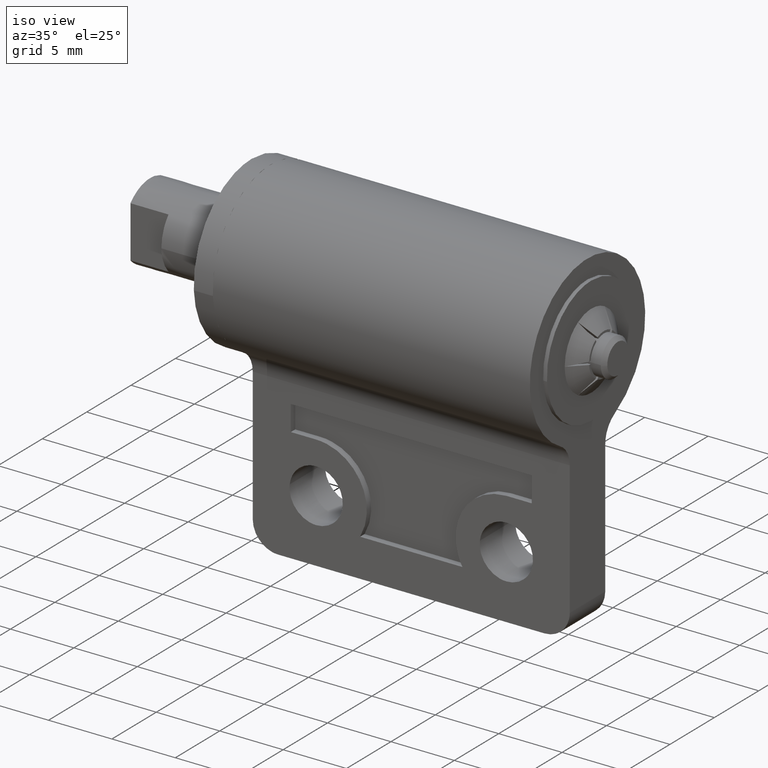
[diagram: clean part render]
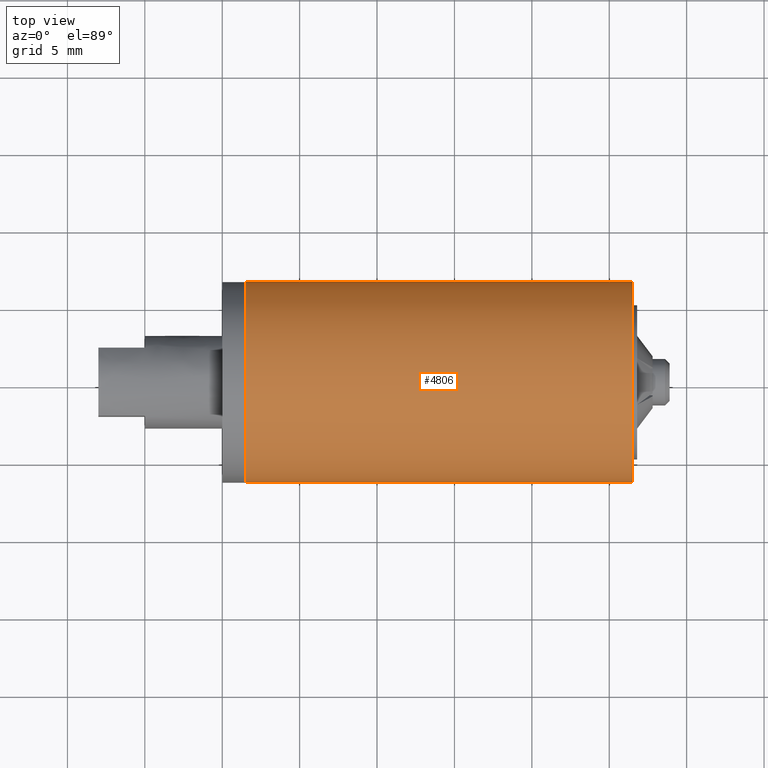
[diagram: tour spotlight — one face highlighted and labeled with its STEP entity id]
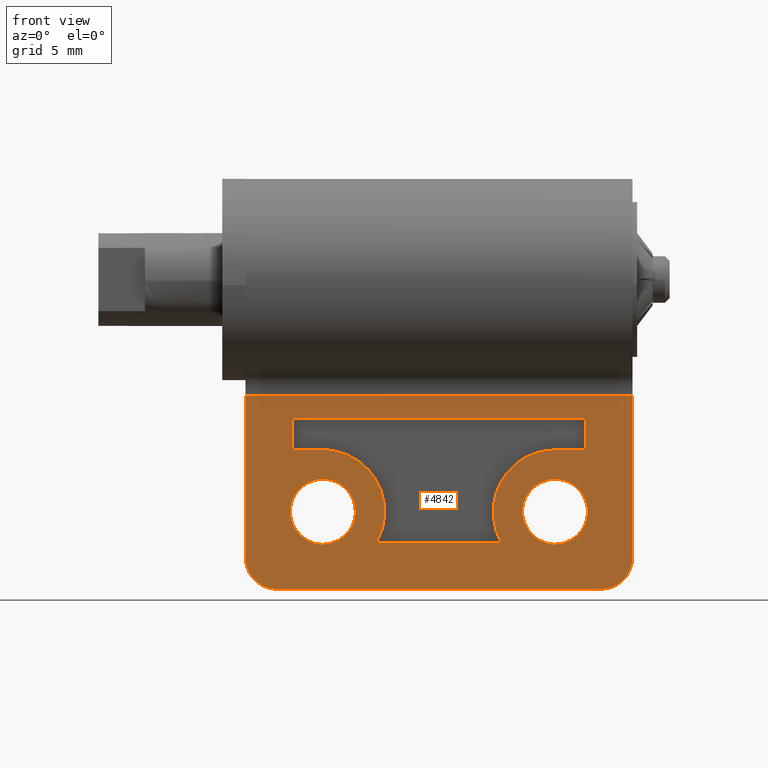
[diagram: tour spotlight — one face highlighted and labeled with its STEP entity id]
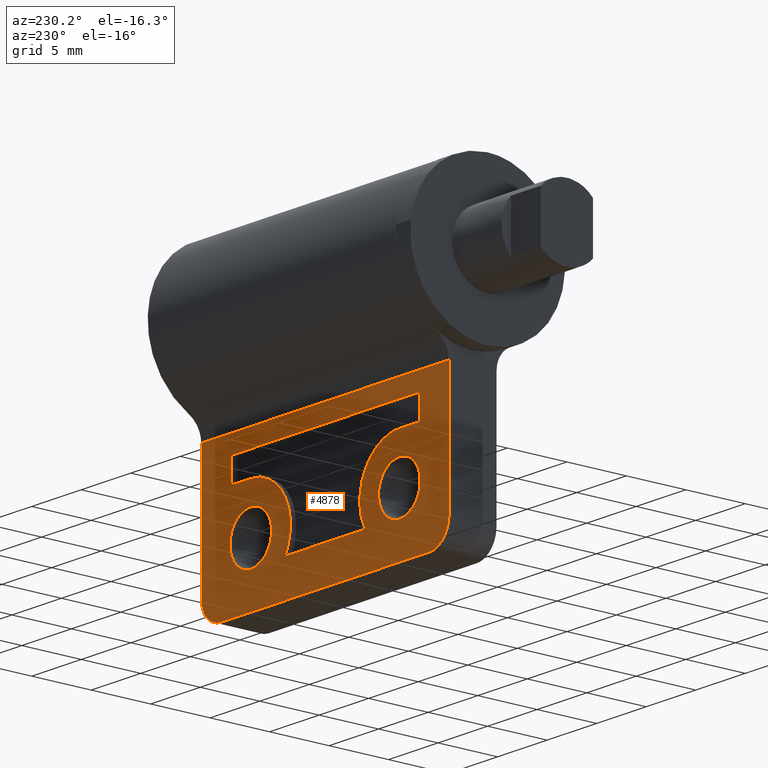
[diagram: tour spotlight — one face highlighted and labeled with its STEP entity id]
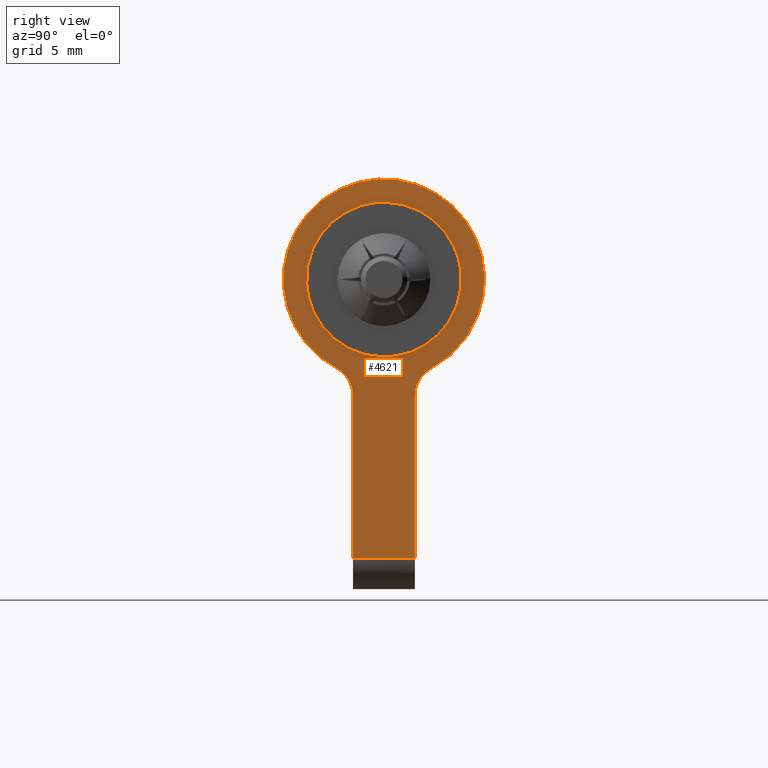
[diagram: tour spotlight — one face highlighted and labeled with its STEP entity id]
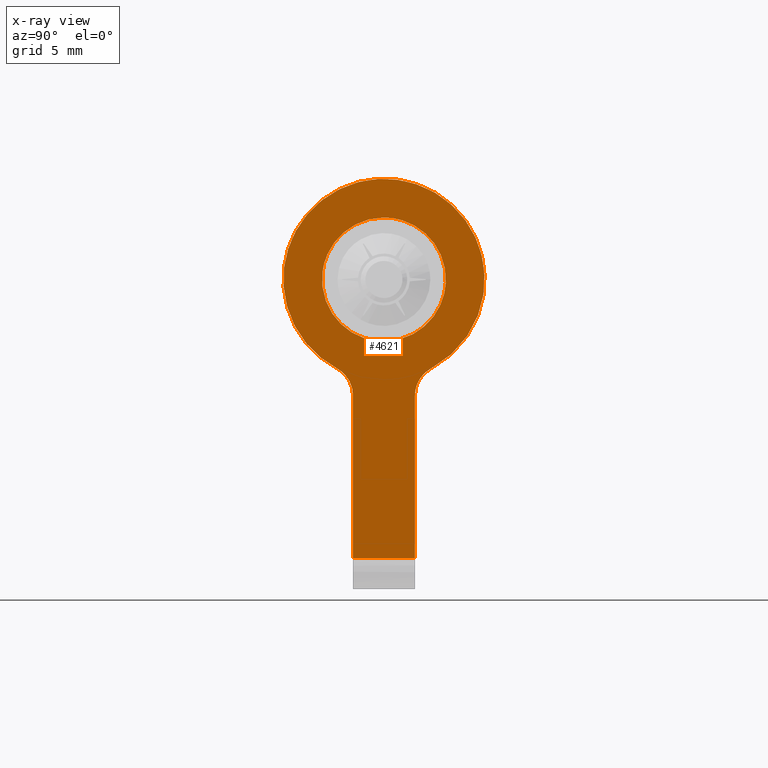
[diagram: x-ray of the same camera — body ghosted, this tour face saturated]
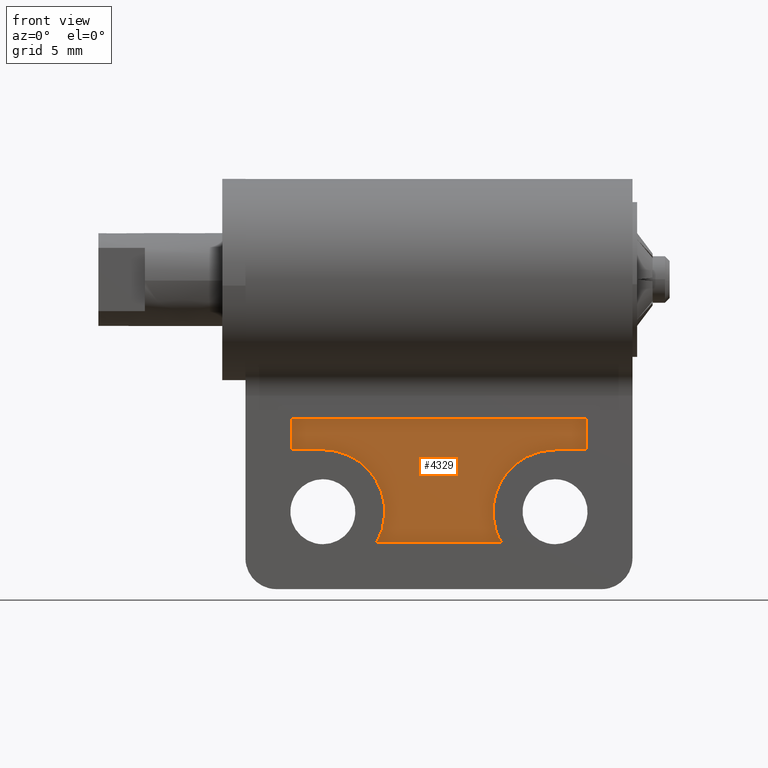
[diagram: tour spotlight — one face highlighted and labeled with its STEP entity id]
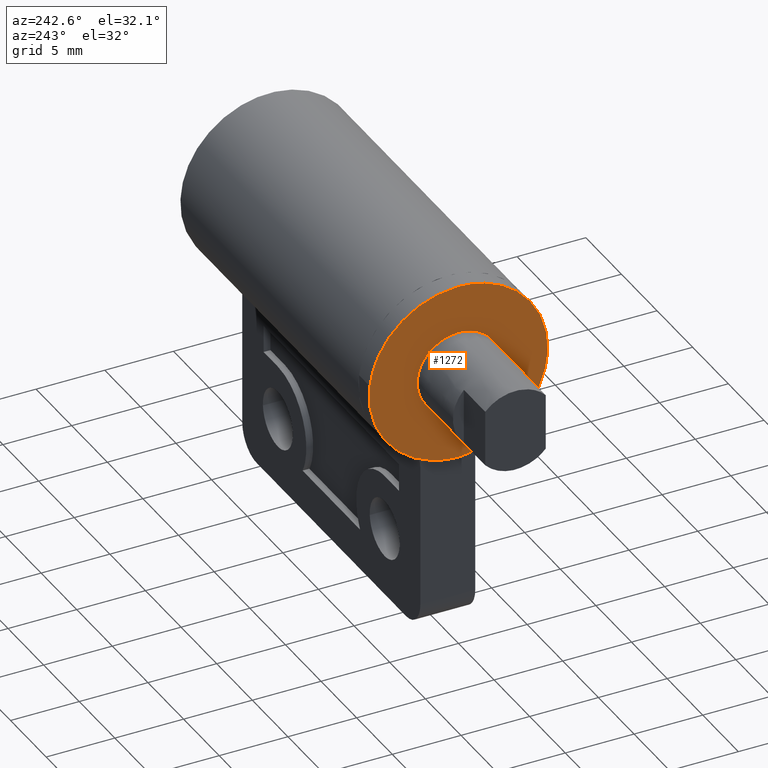
[diagram: tour spotlight — one face highlighted and labeled with its STEP entity id]
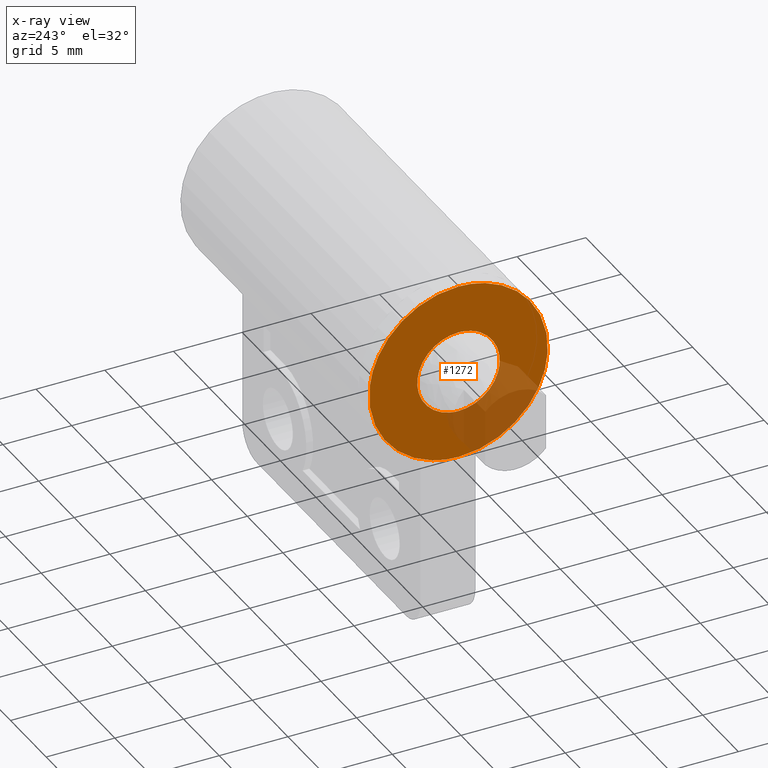
[diagram: x-ray of the same camera — body ghosted, this tour face saturated]
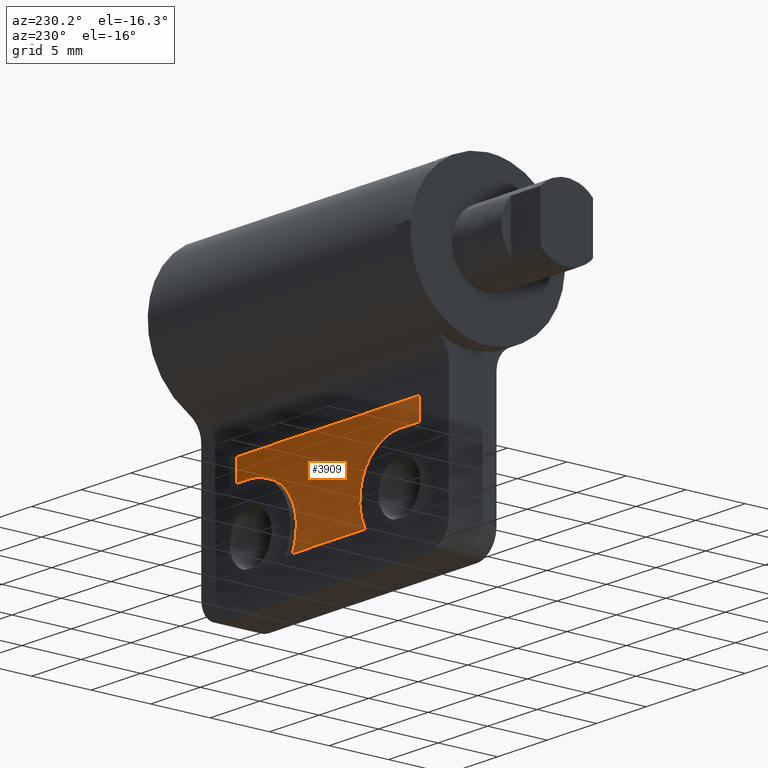
[diagram: tour spotlight — one face highlighted and labeled with its STEP entity id]
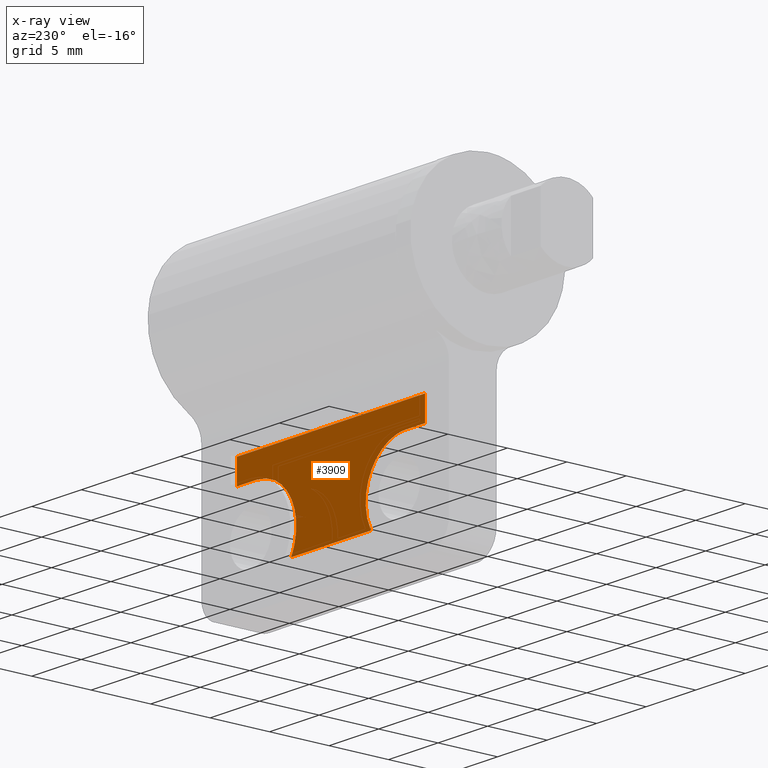
[diagram: x-ray of the same camera — body ghosted, this tour face saturated]
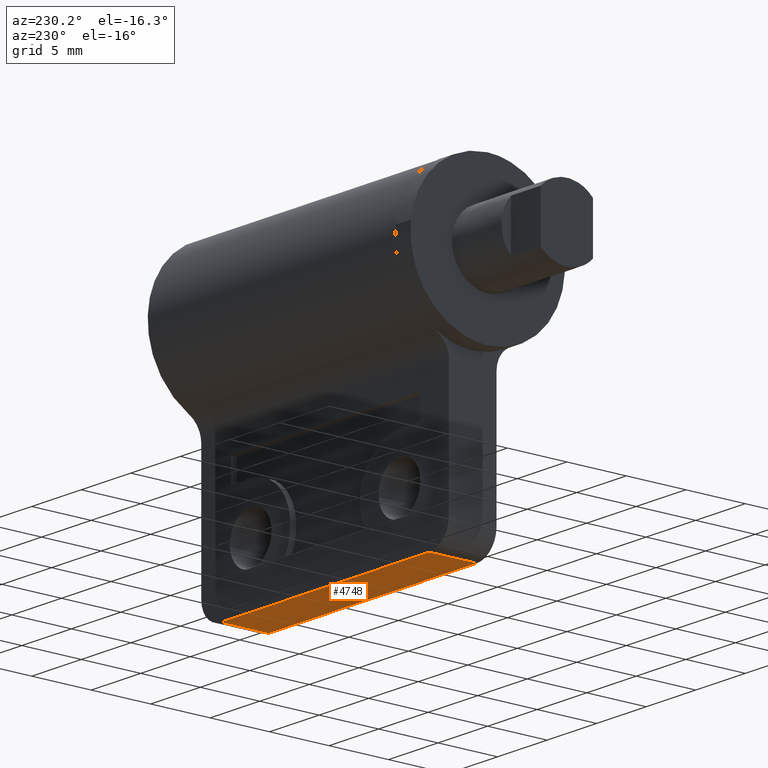
[diagram: tour spotlight — one face highlighted and labeled with its STEP entity id]
A machine part: a face-by-face anatomy tour. The part has 101 B-rep faces; the first image is the clean iso view, then the 8 largest visible faces are spotlighted one at a time (largest first), each with its STEP entity span.

Face 1 — top view, entity #4806. In plain terms, the highlighted face is a freeform B-spline surface patch.
Definition (entity closure, byte-faithful):
#4564=CARTESIAN_POINT('',(31.500000000000000,3.058823527436040,-5.735294118700780));
#4565=VERTEX_POINT('',#4564);
#4579=CARTESIAN_POINT('',(31.500000000000000,-3.058823527436040,-5.735294118700780));
#4580=VERTEX_POINT('',#4579);
#4581=CARTESIAN_POINT('',(31.500000000000000,3.058823527436040,-5.735294118700779));
#4582=CARTESIAN_POINT('',(31.500000000000007,7.536805859902648,-3.347036876699971));
#4583=CARTESIAN_POINT('',(31.500000000000000,6.305926251216195,1.576481561650014));
#4584=CARTESIAN_POINT('',(31.500000000000007,5.075046642529742,6.500000000000000));
#4585=CARTESIAN_POINT('',(31.500000000000000,0.0,6.500000000000000));
#4586=CARTESIAN_POINT('',(31.500000000000007,-5.075046642529739,6.500000000000002));
#4587=CARTESIAN_POINT('',(31.500000000000000,-6.305926251216194,1.576481561650017));
#4588=CARTESIAN_POINT('',(31.500000000000007,-7.536805859902648,-3.347036876699968));
#4589=CARTESIAN_POINT('',(31.500000000000000,-3.058823527436043,-5.735294118700777));
#4597=(BOUNDED_CURVE()B_SPLINE_CURVE(2,(#4581,#4582,#4583,#4584,#4585,#4586,#4587,#4588,#4589),.UNSPECIFIED.,.F.,.U.)B_SPLINE_CURVE_WITH_KNOTS((3,2,2,2,3),(0.0,0.250000000000000,0.500000000000000,0.750000000000000,1.0),.UNSPECIFIED.)CURVE()GEOMETRIC_REPRESENTATION_ITEM()RATIONAL_B_SPLINE_CURVE((1.0,0.788205437963109,1.0,0.788205437963109,1.0,0.788205437963109,1.0,0.788205437963109,1.0))REPRESENTATION_ITEM(''));
#4598=EDGE_CURVE('',#4565,#4580,#4597,.T.);
#4642=CARTESIAN_POINT('',(6.500000000000000,-3.058823527436040,-5.735294118700780));
#4643=VERTEX_POINT('',#4642);
#4657=CARTESIAN_POINT('',(6.500000000000000,3.058823527436040,-5.735294118700780));
#4658=VERTEX_POINT('',#4657);
#4659=CARTESIAN_POINT('',(6.500000000000000,3.058823527436040,-5.735294118700779));
#4660=CARTESIAN_POINT('',(6.500000000000000,7.536805859902648,-3.347036876699971));
#4661=CARTESIAN_POINT('',(6.500000000000000,6.305926251216195,1.576481561650014));
#4662=CARTESIAN_POINT('',(6.500000000000000,5.075046642529742,6.500000000000000));
#4663=CARTESIAN_POINT('',(6.500000000000000,0.0,6.500000000000000));
#4664=CARTESIAN_POINT('',(6.500000000000000,-5.075046642529739,6.500000000000002));
#4665=CARTESIAN_POINT('',(6.500000000000000,-6.305926251216194,1.576481561650017));
#4666=CARTESIAN_POINT('',(6.500000000000000,-7.536805859902648,-3.347036876699968));
#4667=CARTESIAN_POINT('',(6.500000000000000,-3.058823527436043,-5.735294118700777));
#4675=(BOUNDED_CURVE()B_SPLINE_CURVE(2,(#4659,#4660,#4661,#4662,#4663,#4664,#4665,#4666,#4667),.UNSPECIFIED.,.F.,.U.)B_SPLINE_CURVE_WITH_KNOTS((3,2,2,2,3),(0.0,0.250000000000000,0.500000000000000,0.750000000000000,1.0),.UNSPECIFIED.)CURVE()GEOMETRIC_REPRESENTATION_ITEM()RATIONAL_B_SPLINE_CURVE((1.0,0.788205437963109,1.0,0.788205437963109,1.0,0.788205437963109,1.0,0.788205437963109,1.0))REPRESENTATION_ITEM(''));
#4676=EDGE_CURVE('',#4658,#4643,#4675,.T.);
#4721=CARTESIAN_POINT('',(6.500000000000000,3.058823527436040,-5.735294118700780));
#4722=CARTESIAN_POINT('',(31.500000000000000,3.058823527436040,-5.735294118700780));
#4723=QUASI_UNIFORM_CURVE('',1,(#4721,#4722),.UNSPECIFIED.,.F.,.U.);
#4724=EDGE_CURVE('',#4658,#4565,#4723,.T.);
#4764=CARTESIAN_POINT('',(6.500000000000000,-3.058823527436040,-5.735294118700780));
#4765=CARTESIAN_POINT('',(31.500000000000000,-3.058823527436040,-5.735294118700780));
#4766=QUASI_UNIFORM_CURVE('',1,(#4764,#4765),.UNSPECIFIED.,.F.,.U.);
#4767=EDGE_CURVE('',#4643,#4580,#4766,.T.);
#4778=CARTESIAN_POINT('',(5.874999999999998,-2.892924080991763,-5.820737948200206));
#4779=CARTESIAN_POINT('',(32.140625000000000,-2.892924080991763,-5.820737948200206));
#4780=CARTESIAN_POINT('',(5.874999999999997,-10.254447393086890,-2.162038956446567));
#4781=CARTESIAN_POINT('',(32.140625000000000,-10.254447393086890,-2.162038956446567));
#4782=CARTESIAN_POINT('',(5.874999999999998,-4.996684997555850,4.157299488273640));
#4783=CARTESIAN_POINT('',(32.140625000000000,-4.996684997555850,4.157299488273640));
#4784=CARTESIAN_POINT('',(5.874999999999997,0.261077397975192,10.476637932993848));
#4785=CARTESIAN_POINT('',(32.140625000000000,0.261077397975192,10.476637932993848));
#4786=CARTESIAN_POINT('',(5.874999999999998,5.197553804065822,3.903259465349553));
#4787=CARTESIAN_POINT('',(32.140625000000000,5.197553804065822,3.903259465349553));
#4788=CARTESIAN_POINT('',(5.874999999999997,10.134030210156453,-2.670119002294742));
#4789=CARTESIAN_POINT('',(32.140625000000000,10.134030210156453,-2.670119002294742));
#4790=CARTESIAN_POINT('',(5.874999999999998,2.599408205045206,-5.957606648944157));
#4791=CARTESIAN_POINT('',(32.140625000000000,2.599408205045206,-5.957606648944157));
#4799=(BOUNDED_SURFACE()B_SPLINE_SURFACE(1,2,((#4778,#4780,#4782,#4784,#4786,#4788,#4790),(#4779,#4781,#4783,#4785,#4787,#4789,#4791)),.UNSPECIFIED.,.F.,.F.,.U.)B_SPLINE_SURFACE_WITH_KNOTS((2,2),(3,2,2,3),(0.0,26.265625000000000),(0.0,12.587557424720201,25.175114849440391,37.762672274160593),.UNSPECIFIED.)GEOMETRIC_REPRESENTATION_ITEM()RATIONAL_B_SPLINE_SURFACE(((1.0,0.620235491268260,1.0,0.620235491268260,1.0,0.620235491268260,1.0),(1.0,0.620235491268260,1.0,0.620235491268260,1.0,0.620235491268260,1.0)))REPRESENTATION_ITEM('')SURFACE());
#4800=ORIENTED_EDGE('',*,*,#4598,.F.);
#4801=ORIENTED_EDGE('',*,*,#4724,.F.);
#4802=ORIENTED_EDGE('',*,*,#4676,.T.);
#4803=ORIENTED_EDGE('',*,*,#4767,.T.);
#4804=EDGE_LOOP('',(#4800,#4801,#4802,#4803));
#4805=FACE_OUTER_BOUND('',#4804,.T.);
#4806=ADVANCED_FACE('',(#4805),#4799,.T.);

Face 2 — front view, entity #4842. In plain terms, the highlighted face is a freeform B-spline surface patch.
Definition (entity closure, byte-faithful):
#3286=CARTESIAN_POINT('',(9.414679769260243,-2.000000000000016,-14.752130003300460));
#3287=VERTEX_POINT('',#3286);
#3288=CARTESIAN_POINT('',(11.500000000000000,-2.0,-17.100000000000001));
#3289=VERTEX_POINT('',#3288);
#3290=CARTESIAN_POINT('',(9.414679769260243,-2.000000000000016,-14.752130003300458));
#3291=CARTESIAN_POINT('',(9.400000000000000,-2.000000000000000,-14.875630306793242));
#3292=CARTESIAN_POINT('',(9.400000000000000,-2.0,-15.0));
#3293=CARTESIAN_POINT('',(9.400000000000000,-2.000000000000000,-17.099999999999994));
#3294=CARTESIAN_POINT('',(11.500000000000000,-2.0,-17.100000000000001));
#3302=(BOUNDED_CURVE()B_SPLINE_CURVE(2,(#3290,#3291,#3292,#3293,#3294),.UNSPECIFIED.,.F.,.U.)B_SPLINE_CURVE_WITH_KNOTS((3,2,3),(0.229562627182055,0.250000000000000,0.500000000000000),.UNSPECIFIED.)CURVE()GEOMETRIC_REPRESENTATION_ITEM()RATIONAL_B_SPLINE_CURVE((0.956027055380560,0.976056128365046,1.0,0.707106781186548,1.0))REPRESENTATION_ITEM(''));
#3303=EDGE_CURVE('',#3287,#3289,#3302,.T.);
#3305=CARTESIAN_POINT('',(13.596083076684859,-2.0,-15.128201933040470));
#3306=VERTEX_POINT('',#3305);
#3307=CARTESIAN_POINT('',(11.500000000000000,-2.0,-17.100000000000001));
#3308=CARTESIAN_POINT('',(13.475482740469346,-2.000000000000000,-17.100000000000001));
#3309=CARTESIAN_POINT('',(13.596083076684865,-2.000000000000000,-15.128201933040462));
#3317=(BOUNDED_CURVE()B_SPLINE_CURVE(2,(#3307,#3308,#3309),.UNSPECIFIED.,.F.,.U.)B_SPLINE_CURVE_WITH_KNOTS((3,3),(0.500000000000000,0.739332962239125),.UNSPECIFIED.)CURVE()GEOMETRIC_REPRESENTATION_ITEM()RATIONAL_B_SPLINE_CURVE((1.0,0.719603993286497,0.976072041667108))REPRESENTATION_ITEM(''));
#3318=EDGE_CURVE('',#3289,#3306,#3317,.T.);
#3385=CARTESIAN_POINT('',(11.500000000000000,-2.0,-12.900000000000000));
#3386=VERTEX_POINT('',#3385);
#3387=CARTESIAN_POINT('',(11.500000000000000,-2.0,-12.900000000000000));
#3388=CARTESIAN_POINT('',(9.634831787658165,-1.999999999999999,-12.900000000000002));
#3389=CARTESIAN_POINT('',(9.414679769260243,-2.000000000000016,-14.752130003300465));
#3397=(BOUNDED_CURVE()B_SPLINE_CURVE(2,(#3387,#3388,#3389),.UNSPECIFIED.,.F.,.U.)B_SPLINE_CURVE_WITH_KNOTS((3,3),(0.0,0.229562627182055),.UNSPECIFIED.)CURVE()GEOMETRIC_REPRESENTATION_ITEM()RATIONAL_B_SPLINE_CURVE((1.0,0.731050652821502,0.956027055380560))REPRESENTATION_ITEM(''));
#3398=EDGE_CURVE('',#3386,#3287,#3397,.T.);
#3432=CARTESIAN_POINT('',(13.596083076684863,-2.000000000000000,-15.128201933040465));
#3433=CARTESIAN_POINT('',(13.600000000000000,-2.0,-15.064160802944356));
#3434=CARTESIAN_POINT('',(13.600000000000000,-2.0,-15.0));
#3435=CARTESIAN_POINT('',(13.600000000000003,-2.000000000000000,-12.900000000000002));
#3436=CARTESIAN_POINT('',(11.500000000000000,-2.0,-12.900000000000000));
#3444=(BOUNDED_CURVE()B_SPLINE_CURVE(2,(#3432,#3433,#3434,#3435,#3436),.UNSPECIFIED.,.F.,.U.)B_SPLINE_CURVE_WITH_KNOTS((3,2,3),(0.739332962239126,0.750000000000000,1.0),.UNSPECIFIED.)CURVE()GEOMETRIC_REPRESENTATION_ITEM()RATIONAL_B_SPLINE_CURVE((0.976072041667110,0.987502787900052,1.0,0.707106781186548,1.0))REPRESENTATION_ITEM(''));
#3445=EDGE_CURVE('',#3306,#3386,#3444,.T.);
#3472=CARTESIAN_POINT('',(24.414679769260239,-2.000000000000016,-14.752130003300460));
#3473=VERTEX_POINT('',#3472);
#3474=CARTESIAN_POINT('',(26.500000000000000,-2.0,-17.100000000000001));
#3475=VERTEX_POINT('',#3474);
#3476=CARTESIAN_POINT('',(24.414679769260236,-2.000000000000016,-14.752130003300465));
#3477=CARTESIAN_POINT('',(24.399999999999999,-2.000000000000000,-14.875630306793241));
#3478=CARTESIAN_POINT('',(24.399999999999999,-2.0,-15.0));
#3479=CARTESIAN_POINT('',(24.400000000000002,-2.000000000000000,-17.099999999999994));
#3480=CARTESIAN_POINT('',(26.500000000000000,-2.0,-17.100000000000001));
#3488=(BOUNDED_CURVE()B_SPLINE_CURVE(2,(#3476,#3477,#3478,#3479,#3480),.UNSPECIFIED.,.F.,.U.)B_SPLINE_CURVE_WITH_KNOTS((3,2,3),(0.229562627182055,0.250000000000000,0.500000000000000),.UNSPECIFIED.)CURVE()GEOMETRIC_REPRESENTATION_ITEM()RATIONAL_B_SPLINE_CURVE((0.956027055380560,0.976056128365046,1.0,0.707106781186548,1.0))REPRESENTATION_ITEM(''));
#3489=EDGE_CURVE('',#3473,#3475,#3488,.T.);
#3491=CARTESIAN_POINT('',(28.596083076684870,-2.0,-15.128201933040470));
#3492=VERTEX_POINT('',#3491);
#3493=CARTESIAN_POINT('',(26.500000000000000,-2.0,-17.100000000000001));
#3494=CARTESIAN_POINT('',(28.475482740469356,-2.000000000000000,-17.100000000000001));
#3495=CARTESIAN_POINT('',(28.596083076684870,-2.000000000000000,-15.128201933040462));
#3503=(BOUNDED_CURVE()B_SPLINE_CURVE(2,(#3493,#3494,#3495),.UNSPECIFIED.,.F.,.U.)B_SPLINE_CURVE_WITH_KNOTS((3,3),(0.500000000000000,0.739332962239125),.UNSPECIFIED.)CURVE()GEOMETRIC_REPRESENTATION_ITEM()RATIONAL_B_SPLINE_CURVE((1.0,0.719603993286497,0.976072041667108))REPRESENTATION_ITEM(''));
#3504=EDGE_CURVE('',#3475,#3492,#3503,.T.);
#3571=CARTESIAN_POINT('',(26.500000000000000,-2.0,-12.900000000000000));
#3572=VERTEX_POINT('',#3571);
#3573=CARTESIAN_POINT('',(26.500000000000000,-2.0,-12.900000000000000));
#3574=CARTESIAN_POINT('',(24.634831787658161,-1.999999999999999,-12.900000000000002));
#3575=CARTESIAN_POINT('',(24.414679769260236,-2.000000000000016,-14.752130003300465));
#3583=(BOUNDED_CURVE()B_SPLINE_CURVE(2,(#3573,#3574,#3575),.UNSPECIFIED.,.F.,.U.)B_SPLINE_CURVE_WITH_KNOTS((3,3),(0.0,0.229562627182055),.UNSPECIFIED.)CURVE()GEOMETRIC_REPRESENTATION_ITEM()RATIONAL_B_SPLINE_CURVE((1.0,0.731050652821502,0.956027055380560))REPRESENTATION_ITEM(''));
#3584=EDGE_CURVE('',#3572,#3473,#3583,.T.);
#3618=CARTESIAN_POINT('',(28.596083076684867,-2.000000000000000,-15.128201933040465));
#3619=CARTESIAN_POINT('',(28.600000000000005,-2.0,-15.064160802944356));
#3620=CARTESIAN_POINT('',(28.600000000000001,-2.0,-15.0));
#3621=CARTESIAN_POINT('',(28.600000000000012,-2.000000000000000,-12.900000000000002));
#3622=CARTESIAN_POINT('',(26.500000000000000,-2.0,-12.900000000000000));
#3630=(BOUNDED_CURVE()B_SPLINE_CURVE(2,(#3618,#3619,#3620,#3621,#3622),.UNSPECIFIED.,.F.,.U.)B_SPLINE_CURVE_WITH_KNOTS((3,2,3),(0.739332962239126,0.750000000000000,1.0),.UNSPECIFIED.)CURVE()GEOMETRIC_REPRESENTATION_ITEM()RATIONAL_B_SPLINE_CURVE((0.976072041667110,0.987502787900052,1.0,0.707106781186548,1.0))REPRESENTATION_ITEM(''));
#3631=EDGE_CURVE('',#3492,#3572,#3630,.T.);
#4138=CARTESIAN_POINT('',(6.500000000000000,-2.0,-18.0));
#4139=VERTEX_POINT('',#4138);
#4140=CARTESIAN_POINT('',(8.500000000000000,-2.0,-20.0));
#4141=VERTEX_POINT('',#4140);
#4142=CARTESIAN_POINT('',(6.500000000000001,-2.0,-18.0));
#4143=CARTESIAN_POINT('',(6.500000000000003,-2.000000000000000,-19.999999999999996));
#4144=CARTESIAN_POINT('',(8.500000000000000,-2.0,-20.0));
#4152=(BOUNDED_CURVE()B_SPLINE_CURVE(2,(#4142,#4143,#4144),.UNSPECIFIED.,.F.,.U.)CURVE()GEOMETRIC_REPRESENTATION_ITEM()QUASI_UNIFORM_CURVE()RATIONAL_B_SPLINE_CURVE((1.0,0.707106781186548,1.0))REPRESENTATION_ITEM(''));
#4153=EDGE_CURVE('',#4139,#4141,#4152,.T.);
#4199=CARTESIAN_POINT('',(29.500000000000000,-2.0,-20.0));
#4200=VERTEX_POINT('',#4199);
#4201=CARTESIAN_POINT('',(31.500000000000000,-2.0,-18.0));
#4202=VERTEX_POINT('',#4201);
#4203=CARTESIAN_POINT('',(29.500000000000000,-2.0,-20.0));
#4204=CARTESIAN_POINT('',(31.500000000000000,-2.000000000000000,-19.999999999999996));
#4205=CARTESIAN_POINT('',(31.500000000000000,-2.0,-18.0));
#4213=(BOUNDED_CURVE()B_SPLINE_CURVE(2,(#4203,#4204,#4205),.UNSPECIFIED.,.F.,.U.)CURVE()GEOMETRIC_REPRESENTATION_ITEM()QUASI_UNIFORM_CURVE()RATIONAL_B_SPLINE_CURVE((1.0,0.707106781186548,1.0))REPRESENTATION_ITEM(''));
#4214=EDGE_CURVE('',#4200,#4202,#4213,.T.);
#4335=CARTESIAN_POINT('',(23.035898384862151,-2.0,-17.0));
#4336=VERTEX_POINT('',#4335);
#4337=CARTESIAN_POINT('',(14.964100999999999,-2.0,-17.0));
#4338=VERTEX_POINT('',#4337);
#4339=CARTESIAN_POINT('',(23.035898384862151,-2.0,-17.0));
#4340=CARTESIAN_POINT('',(14.964100999999999,-2.0,-17.0));
#4341=QUASI_UNIFORM_CURVE('',1,(#4339,#4340),.UNSPECIFIED.,.F.,.U.);
#4342=EDGE_CURVE('',#4336,#4338,#4341,.T.);
#4372=CARTESIAN_POINT('',(26.500000000000000,-2.0,-11.0));
#4373=VERTEX_POINT('',#4372);
#4374=CARTESIAN_POINT('',(26.500000000000000,-2.0,-11.0));
#4375=CARTESIAN_POINT('',(24.190598923241510,-2.0,-11.0));
#4376=CARTESIAN_POINT('',(23.035898384862261,-2.0,-12.999999999999980));
#4377=CARTESIAN_POINT('',(21.881197846482998,-2.0,-14.999999999999964));
#4378=CARTESIAN_POINT('',(23.035898384862151,-2.0,-17.0));
#4386=(BOUNDED_CURVE()B_SPLINE_CURVE(2,(#4374,#4375,#4376,#4377,#4378),.UNSPECIFIED.,.F.,.U.)B_SPLINE_CURVE_WITH_KNOTS((3,2,3),(0.0,0.500000000000000,1.0),.UNSPECIFIED.)CURVE()GEOMETRIC_REPRESENTATION_ITEM()RATIONAL_B_SPLINE_CURVE((1.0,0.866025403784440,1.0,0.866025403784440,1.0))REPRESENTATION_ITEM(''));
#4387=EDGE_CURVE('',#4373,#4336,#4386,.T.);
#4404=CARTESIAN_POINT('',(28.500000000000000,-2.0,-11.0));
#4405=VERTEX_POINT('',#4404);
#4406=CARTESIAN_POINT('',(28.500000000000000,-2.0,-11.0));
#4407=CARTESIAN_POINT('',(26.500000000000000,-2.0,-11.0));
#4408=QUASI_UNIFORM_CURVE('',1,(#4406,#4407),.UNSPECIFIED.,.F.,.U.);
#4409=EDGE_CURVE('',#4405,#4373,#4408,.T.);
#4426=CARTESIAN_POINT('',(28.500000000000000,-2.0,-9.0));
#4427=VERTEX_POINT('',#4426);
#4428=CARTESIAN_POINT('',(28.500000000000000,-2.0,-9.0));
#4429=CARTESIAN_POINT('',(28.500000000000000,-2.0,-11.0));
#4430=QUASI_UNIFORM_CURVE('',1,(#4428,#4429),.UNSPECIFIED.,.F.,.U.);
#4431=EDGE_CURVE('',#4427,#4405,#4430,.T.);
#4448=CARTESIAN_POINT('',(9.500000000000000,-2.0,-9.0));
#4449=VERTEX_POINT('',#4448);
#4450=CARTESIAN_POINT('',(9.500000000000000,-2.0,-9.0));
#4451=CARTESIAN_POINT('',(28.500000000000000,-2.0,-9.0));
#4452=QUASI_UNIFORM_CURVE('',1,(#4450,#4451),.UNSPECIFIED.,.F.,.U.);
#4453=EDGE_CURVE('',#4449,#4427,#4452,.T.);
#4470=CARTESIAN_POINT('',(9.500000000000000,-2.0,-11.0));
#4471=VERTEX_POINT('',#4470);
#4472=CARTESIAN_POINT('',(9.500000000000000,-2.0,-11.0));
#4473=CARTESIAN_POINT('',(9.500000000000000,-2.0,-9.0));
#4474=QUASI_UNIFORM_CURVE('',1,(#4472,#4473),.UNSPECIFIED.,.F.,.U.);
#4475=EDGE_CURVE('',#4471,#4449,#4474,.T.);
#4492=CARTESIAN_POINT('',(11.500000000000000,-2.0,-11.0));
#4493=VERTEX_POINT('',#4492);
#4494=CARTESIAN_POINT('',(11.500000000000000,-2.0,-11.0));
#4495=CARTESIAN_POINT('',(9.500000000000000,-2.0,-11.0));
#4496=QUASI_UNIFORM_CURVE('',1,(#4494,#4495),.UNSPECIFIED.,.F.,.U.);
#4497=EDGE_CURVE('',#4493,#4471,#4496,.T.);
#4523=CARTESIAN_POINT('',(14.964100999999999,-2.0,-17.0));
#4524=CARTESIAN_POINT('',(16.118802204778483,-2.000000000000000,-15.000000266362507));
#4525=CARTESIAN_POINT('',(14.964101692029979,-2.0,-13.000000133181249));
#4526=CARTESIAN_POINT('',(13.809401179281481,-2.000000000000000,-11.0));
#4527=CARTESIAN_POINT('',(11.500000000000000,-2.0,-11.0));
#4535=(BOUNDED_CURVE()B_SPLINE_CURVE(2,(#4523,#4524,#4525,#4526,#4527),.UNSPECIFIED.,.F.,.U.)B_SPLINE_CURVE_WITH_KNOTS((3,2,3),(0.0,0.500000000000000,1.0),.UNSPECIFIED.)CURVE()GEOMETRIC_REPRESENTATION_ITEM()RATIONAL_B_SPLINE_CURVE((1.0,0.866025394172910,1.0,0.866025394172910,1.0))REPRESENTATION_ITEM(''));
#4536=EDGE_CURVE('',#4338,#4493,#4535,.T.);
#4549=CARTESIAN_POINT('',(31.500000000000000,-2.0,-7.500000000000000));
#4550=VERTEX_POINT('',#4549);
#4551=CARTESIAN_POINT('',(31.500000000000000,-2.0,-7.500000000000000));
#4552=CARTESIAN_POINT('',(31.500000000000000,-2.0,-18.0));
#4553=QUASI_UNIFORM_CURVE('',1,(#4551,#4552),.UNSPECIFIED.,.F.,.U.);
#4554=EDGE_CURVE('',#4550,#4202,#4553,.T.);
#4635=CARTESIAN_POINT('',(6.500000000000000,-2.0,-7.500000000000000));
#4636=VERTEX_POINT('',#4635);
#4637=CARTESIAN_POINT('',(6.500000000000000,-2.0,-7.500000000000000));
#4638=CARTESIAN_POINT('',(6.500000000000000,-2.0,-18.0));
#4639=QUASI_UNIFORM_CURVE('',1,(#4637,#4638),.UNSPECIFIED.,.F.,.U.);
#4640=EDGE_CURVE('',#4636,#4139,#4639,.T.);
#4740=CARTESIAN_POINT('',(8.500000000000000,-2.0,-20.0));
#4741=CARTESIAN_POINT('',(29.500000000000000,-2.0,-20.0));
#4742=QUASI_UNIFORM_CURVE('',1,(#4740,#4741),.UNSPECIFIED.,.F.,.U.);
#4743=EDGE_CURVE('',#4141,#4200,#4742,.T.);
#4770=CARTESIAN_POINT('',(6.500000000000000,-2.0,-7.500000000000000));
#4771=CARTESIAN_POINT('',(31.500000000000000,-2.0,-7.500000000000000));
#4772=QUASI_UNIFORM_CURVE('',1,(#4770,#4771),.UNSPECIFIED.,.F.,.U.);
#4773=EDGE_CURVE('',#4636,#4550,#4772,.T.);
#4807=CARTESIAN_POINT('',(5.251250048454851,-2.0,-6.875625024227424));
#4808=CARTESIAN_POINT('',(5.251250048454851,-2.0,-20.624375311048698));
#4809=CARTESIAN_POINT('',(32.748750622097397,-2.0,-6.875625024227424));
#4810=CARTESIAN_POINT('',(32.748750622097397,-2.0,-20.624375311048698));
#4811=B_SPLINE_SURFACE_WITH_KNOTS('',1,1,((#4807,#4809),(#4808,#4810)),.UNSPECIFIED.,.F.,.F.,.U.,(2,2),(2,2),(0.0,13.748750286821281),(0.0,27.497500573642551),.UNSPECIFIED.);
#4812=ORIENTED_EDGE('',*,*,#4743,.T.);
#4813=ORIENTED_EDGE('',*,*,#4214,.T.);
#4814=ORIENTED_EDGE('',*,*,#4554,.F.);
#4815=ORIENTED_EDGE('',*,*,#4773,.F.);
#4816=ORIENTED_EDGE('',*,*,#4640,.T.);
#4817=ORIENTED_EDGE('',*,*,#4153,.T.);
#4818=EDGE_LOOP('',(#4812,#4813,#4814,#4815,#4816,#4817));
#4819=FACE_OUTER_BOUND('',#4818,.T.);
#4820=ORIENTED_EDGE('',*,*,#4342,.T.);
#4821=ORIENTED_EDGE('',*,*,#4536,.T.);
#4822=ORIENTED_EDGE('',*,*,#4497,.T.);
#4823=ORIENTED_EDGE('',*,*,#4475,.T.);
#4824=ORIENTED_EDGE('',*,*,#4453,.T.);
#4825=ORIENTED_EDGE('',*,*,#4431,.T.);
#4826=ORIENTED_EDGE('',*,*,#4409,.T.);
#4827=ORIENTED_EDGE('',*,*,#4387,.T.);
#4828=EDGE_LOOP('',(#4820,#4821,#4822,#4823,#4824,#4825,#4826,#4827));
#4829=FACE_BOUND('',#4828,.T.);
#4830=ORIENTED_EDGE('',*,*,#3504,.F.);
#4831=ORIENTED_EDGE('',*,*,#3489,.F.);
#4832=ORIENTED_EDGE('',*,*,#3584,.F.);
#4833=ORIENTED_EDGE('',*,*,#3631,.F.);
#4834=EDGE_LOOP('',(#4830,#4831,#4832,#4833));
#4835=FACE_BOUND('',#4834,.T.);
#4836=ORIENTED_EDGE('',*,*,#3318,.F.);
#4837=ORIENTED_EDGE('',*,*,#3303,.F.);
#4838=ORIENTED_EDGE('',*,*,#3398,.F.);
#4839=ORIENTED_EDGE('',*,*,#3445,.F.);
#4840=EDGE_LOOP('',(#4836,#4837,#4838,#4839));
#4841=FACE_BOUND('',#4840,.T.);
#4842=ADVANCED_FACE('',(#4819,#4829,#4835,#4841),#4811,.T.);

Face 3 — auxiliary view, entity #4878. In plain terms, the highlighted face is a freeform B-spline surface patch.
Definition (entity closure, byte-faithful):
#3320=CARTESIAN_POINT('',(13.596083076684859,1.999999999999780,-15.128201933040470));
#3321=VERTEX_POINT('',#3320);
#3327=CARTESIAN_POINT('',(11.500000000000000,1.999999999999780,-17.100000000000001));
#3328=VERTEX_POINT('',#3327);
#3329=CARTESIAN_POINT('',(11.500000000000000,1.999999999999780,-17.100000000000001));
#3330=CARTESIAN_POINT('',(13.475482740469346,1.999999999999781,-17.100000000000001));
#3331=CARTESIAN_POINT('',(13.596083076684865,1.999999999999780,-15.128201933040462));
#3339=(BOUNDED_CURVE()B_SPLINE_CURVE(2,(#3329,#3330,#3331),.UNSPECIFIED.,.F.,.U.)B_SPLINE_CURVE_WITH_KNOTS((3,3),(0.500000000000000,0.739332962239125),.UNSPECIFIED.)CURVE()GEOMETRIC_REPRESENTATION_ITEM()RATIONAL_B_SPLINE_CURVE((1.0,0.719603993286497,0.976072041667108))REPRESENTATION_ITEM(''));
#3340=EDGE_CURVE('',#3328,#3321,#3339,.T.);
#3342=CARTESIAN_POINT('',(9.414679772047524,1.999999999999780,-14.752129979850981));
#3343=VERTEX_POINT('',#3342);
#3344=CARTESIAN_POINT('',(9.414679772047524,1.999999999999780,-14.752129979850983));
#3345=CARTESIAN_POINT('',(9.400000000000000,1.999999999999780,-14.875630294944550));
#3346=CARTESIAN_POINT('',(9.400000000000000,1.999999999999780,-15.0));
#3347=CARTESIAN_POINT('',(9.400000000000000,1.999999999999780,-17.099999999999994));
#3348=CARTESIAN_POINT('',(11.500000000000000,1.999999999999780,-17.100000000000001));
#3356=(BOUNDED_CURVE()B_SPLINE_CURVE(2,(#3344,#3345,#3346,#3347,#3348),.UNSPECIFIED.,.F.,.U.)B_SPLINE_CURVE_WITH_KNOTS((3,2,3),(0.229562625281608,0.250000000000000,0.500000000000000),.UNSPECIFIED.)CURVE()GEOMETRIC_REPRESENTATION_ITEM()RATIONAL_B_SPLINE_CURVE((0.956027051655602,0.976056126138534,1.0,0.707106781186548,1.0))REPRESENTATION_ITEM(''));
#3357=EDGE_CURVE('',#3343,#3328,#3356,.T.);
#3401=CARTESIAN_POINT('',(11.500000000000000,1.999999999999780,-12.900000000000000));
#3402=VERTEX_POINT('',#3401);
#3403=CARTESIAN_POINT('',(11.500000000000000,1.999999999999780,-12.900000000000000));
#3404=CARTESIAN_POINT('',(9.634831808779673,1.999999999999781,-12.900000000000002));
#3405=CARTESIAN_POINT('',(9.414679772047524,1.999999999999780,-14.752129979850981));
#3413=(BOUNDED_CURVE()B_SPLINE_CURVE(2,(#3403,#3404,#3405),.UNSPECIFIED.,.F.,.U.)B_SPLINE_CURVE_WITH_KNOTS((3,3),(0.0,0.229562625281608),.UNSPECIFIED.)CURVE()GEOMETRIC_REPRESENTATION_ITEM()RATIONAL_B_SPLINE_CURVE((1.0,0.731050655048013,0.956027051655602))REPRESENTATION_ITEM(''));
#3414=EDGE_CURVE('',#3402,#3343,#3413,.T.);
#3416=CARTESIAN_POINT('',(13.596083076684868,1.999999999999779,-15.128201933040460));
#3417=CARTESIAN_POINT('',(13.600000000000001,1.999999999999780,-15.064160802944349));
#3418=CARTESIAN_POINT('',(13.600000000000000,1.999999999999780,-15.0));
#3419=CARTESIAN_POINT('',(13.600000000000003,1.999999999999780,-12.900000000000002));
#3420=CARTESIAN_POINT('',(11.500000000000000,1.999999999999780,-12.900000000000000));
#3428=(BOUNDED_CURVE()B_SPLINE_CURVE(2,(#3416,#3417,#3418,#3419,#3420),.UNSPECIFIED.,.F.,.U.)B_SPLINE_CURVE_WITH_KNOTS((3,2,3),(0.739332962239125,0.750000000000000,1.0),.UNSPECIFIED.)CURVE()GEOMETRIC_REPRESENTATION_ITEM()RATIONAL_B_SPLINE_CURVE((0.976072041667109,0.987502787900051,1.0,0.707106781186548,1.0))REPRESENTATION_ITEM(''));
#3429=EDGE_CURVE('',#3321,#3402,#3428,.T.);
#3506=CARTESIAN_POINT('',(28.596083076684859,1.999999999999780,-15.128201933040470));
#3507=VERTEX_POINT('',#3506);
#3513=CARTESIAN_POINT('',(26.500000000000000,1.999999999999780,-17.100000000000001));
#3514=VERTEX_POINT('',#3513);
#3515=CARTESIAN_POINT('',(26.500000000000000,1.999999999999780,-17.100000000000001));
#3516=CARTESIAN_POINT('',(28.475482740469356,1.999999999999781,-17.100000000000001));
#3517=CARTESIAN_POINT('',(28.596083076684859,1.999999999999780,-15.128201933040462));
#3525=(BOUNDED_CURVE()B_SPLINE_CURVE(2,(#3515,#3516,#3517),.UNSPECIFIED.,.F.,.U.)B_SPLINE_CURVE_WITH_KNOTS((3,3),(0.500000000000000,0.739332962239125),.UNSPECIFIED.)CURVE()GEOMETRIC_REPRESENTATION_ITEM()RATIONAL_B_SPLINE_CURVE((1.0,0.719603993286497,0.976072041667108))REPRESENTATION_ITEM(''));
#3526=EDGE_CURVE('',#3514,#3507,#3525,.T.);
#3528=CARTESIAN_POINT('',(24.414679772047521,1.999999999999780,-14.752129979850981));
#3529=VERTEX_POINT('',#3528);
#3530=CARTESIAN_POINT('',(24.414679772047524,1.999999999999781,-14.752129979850977));
#3531=CARTESIAN_POINT('',(24.399999999999999,1.999999999999781,-14.875630294944557));
#3532=CARTESIAN_POINT('',(24.399999999999999,1.999999999999780,-15.0));
#3533=CARTESIAN_POINT('',(24.400000000000002,1.999999999999780,-17.099999999999994));
#3534=CARTESIAN_POINT('',(26.500000000000000,1.999999999999780,-17.100000000000001));
#3542=(BOUNDED_CURVE()B_SPLINE_CURVE(2,(#3530,#3531,#3532,#3533,#3534),.UNSPECIFIED.,.F.,.U.)B_SPLINE_CURVE_WITH_KNOTS((3,2,3),(0.229562625281609,0.250000000000000,0.500000000000000),.UNSPECIFIED.)CURVE()GEOMETRIC_REPRESENTATION_ITEM()RATIONAL_B_SPLINE_CURVE((0.956027051655602,0.976056126138535,1.0,0.707106781186548,1.0))REPRESENTATION_ITEM(''));
#3543=EDGE_CURVE('',#3529,#3514,#3542,.T.);
#3587=CARTESIAN_POINT('',(26.500000000000000,1.999999999999780,-12.900000000000000));
#3588=VERTEX_POINT('',#3587);
#3589=CARTESIAN_POINT('',(26.500000000000000,1.999999999999780,-12.900000000000000));
#3590=CARTESIAN_POINT('',(24.634831808779666,1.999999999999780,-12.900000000000000));
#3591=CARTESIAN_POINT('',(24.414679772047517,1.999999999999780,-14.752129979850983));
#3599=(BOUNDED_CURVE()B_SPLINE_CURVE(2,(#3589,#3590,#3591),.UNSPECIFIED.,.F.,.U.)B_SPLINE_CURVE_WITH_KNOTS((3,3),(0.0,0.229562625281608),.UNSPECIFIED.)CURVE()GEOMETRIC_REPRESENTATION_ITEM()RATIONAL_B_SPLINE_CURVE((1.0,0.731050655048013,0.956027051655602))REPRESENTATION_ITEM(''));
#3600=EDGE_CURVE('',#3588,#3529,#3599,.T.);
#3602=CARTESIAN_POINT('',(28.596083076684859,1.999999999999780,-15.128201933040460));
#3603=CARTESIAN_POINT('',(28.600000000000001,1.999999999999780,-15.064160802944349));
#3604=CARTESIAN_POINT('',(28.600000000000001,1.999999999999780,-15.0));
#3605=CARTESIAN_POINT('',(28.600000000000012,1.999999999999780,-12.900000000000002));
#3606=CARTESIAN_POINT('',(26.500000000000000,1.999999999999780,-12.900000000000000));
#3614=(BOUNDED_CURVE()B_SPLINE_CURVE(2,(#3602,#3603,#3604,#3605,#3606),.UNSPECIFIED.,.F.,.U.)B_SPLINE_CURVE_WITH_KNOTS((3,2,3),(0.739332962239125,0.750000000000000,1.0),.UNSPECIFIED.)CURVE()GEOMETRIC_REPRESENTATION_ITEM()RATIONAL_B_SPLINE_CURVE((0.976072041667109,0.987502787900051,1.0,0.707106781186548,1.0))REPRESENTATION_ITEM(''));
#3615=EDGE_CURVE('',#3507,#3588,#3614,.T.);
#3915=CARTESIAN_POINT('',(23.035898384862101,1.999999999999800,-17.0));
#3916=VERTEX_POINT('',#3915);
#3917=CARTESIAN_POINT('',(14.964100999999999,2.0,-17.0));
#3918=VERTEX_POINT('',#3917);
#3919=CARTESIAN_POINT('',(23.035898384862101,1.999999999999800,-17.0));
#3920=CARTESIAN_POINT('',(14.964100999999999,2.0,-17.0));
#3921=QUASI_UNIFORM_CURVE('',1,(#3919,#3920),.UNSPECIFIED.,.F.,.U.);
#3922=EDGE_CURVE('',#3916,#3918,#3921,.T.);
#3952=CARTESIAN_POINT('',(26.500000000000000,2.0,-11.0));
#3953=VERTEX_POINT('',#3952);
#3954=CARTESIAN_POINT('',(26.500000000000000,2.0,-11.0));
#3955=CARTESIAN_POINT('',(24.190598923241527,2.000000000000000,-11.0));
#3956=CARTESIAN_POINT('',(23.035898384862261,2.0,-12.999999999999970));
#3957=CARTESIAN_POINT('',(21.881197846483005,2.000000000000000,-14.999999999999940));
#3958=CARTESIAN_POINT('',(23.035898384862101,1.999999999999800,-17.0));
#3966=(BOUNDED_CURVE()B_SPLINE_CURVE(2,(#3954,#3955,#3956,#3957,#3958),.UNSPECIFIED.,.F.,.U.)B_SPLINE_CURVE_WITH_KNOTS((3,2,3),(0.0,0.500000000000000,1.0),.UNSPECIFIED.)CURVE()GEOMETRIC_REPRESENTATION_ITEM()RATIONAL_B_SPLINE_CURVE((1.0,0.866025403784441,1.0,0.866025403784441,1.0))REPRESENTATION_ITEM(''));
#3967=EDGE_CURVE('',#3953,#3916,#3966,.T.);
#3984=CARTESIAN_POINT('',(28.500000000000000,2.0,-11.0));
#3985=VERTEX_POINT('',#3984);
#3986=CARTESIAN_POINT('',(28.500000000000000,2.0,-11.0));
#3987=CARTESIAN_POINT('',(26.500000000000000,2.0,-11.0));
#3988=QUASI_UNIFORM_CURVE('',1,(#3986,#3987),.UNSPECIFIED.,.F.,.U.);
#3989=EDGE_CURVE('',#3985,#3953,#3988,.T.);
#4006=CARTESIAN_POINT('',(28.500000000000000,2.0,-9.0));
#4007=VERTEX_POINT('',#4006);
#4008=CARTESIAN_POINT('',(28.500000000000000,2.0,-9.0));
#4009=CARTESIAN_POINT('',(28.500000000000000,2.0,-11.0));
#4010=QUASI_UNIFORM_CURVE('',1,(#4008,#4009),.UNSPECIFIED.,.F.,.U.);
#4011=EDGE_CURVE('',#4007,#3985,#4010,.T.);
#4028=CARTESIAN_POINT('',(9.500000000000000,2.0,-9.0));
#4029=VERTEX_POINT('',#4028);
#4030=CARTESIAN_POINT('',(9.500000000000000,2.0,-9.0));
#4031=CARTESIAN_POINT('',(28.500000000000000,2.0,-9.0));
#4032=QUASI_UNIFORM_CURVE('',1,(#4030,#4031),.UNSPECIFIED.,.F.,.U.);
#4033=EDGE_CURVE('',#4029,#4007,#4032,.T.);
#4050=CARTESIAN_POINT('',(9.500000000000000,2.0,-11.0));
#4051=VERTEX_POINT('',#4050);
#4052=CARTESIAN_POINT('',(9.500000000000000,2.0,-11.0));
#4053=CARTESIAN_POINT('',(9.500000000000000,2.0,-9.0));
#4054=QUASI_UNIFORM_CURVE('',1,(#4052,#4053),.UNSPECIFIED.,.F.,.U.);
#4055=EDGE_CURVE('',#4051,#4029,#4054,.T.);
#4072=CARTESIAN_POINT('',(11.500000000000000,2.0,-11.0));
#4073=VERTEX_POINT('',#4072);
#4074=CARTESIAN_POINT('',(11.500000000000000,2.0,-11.0));
#4075=CARTESIAN_POINT('',(9.500000000000000,2.0,-11.0));
#4076=QUASI_UNIFORM_CURVE('',1,(#4074,#4075),.UNSPECIFIED.,.F.,.U.);
#4077=EDGE_CURVE('',#4073,#4051,#4076,.T.);
#4103=CARTESIAN_POINT('',(14.964100999999999,2.0,-17.0));
#4104=CARTESIAN_POINT('',(16.118802204778483,2.000000000000000,-15.000000266362507));
#4105=CARTESIAN_POINT('',(14.964101692029979,2.0,-13.000000133181249));
#4106=CARTESIAN_POINT('',(13.809401179281481,2.000000000000000,-11.0));
#4107=CARTESIAN_POINT('',(11.500000000000000,2.0,-11.0));
#4115=(BOUNDED_CURVE()B_SPLINE_CURVE(2,(#4103,#4104,#4105,#4106,#4107),.UNSPECIFIED.,.F.,.U.)B_SPLINE_CURVE_WITH_KNOTS((3,2,3),(0.0,0.500000000000000,1.0),.UNSPECIFIED.)CURVE()GEOMETRIC_REPRESENTATION_ITEM()RATIONAL_B_SPLINE_CURVE((1.0,0.866025394172910,1.0,0.866025394172910,1.0))REPRESENTATION_ITEM(''));
#4116=EDGE_CURVE('',#3918,#4073,#4115,.T.);
#4155=CARTESIAN_POINT('',(6.500000000000000,1.999999999999800,-18.0));
#4156=VERTEX_POINT('',#4155);
#4162=CARTESIAN_POINT('',(8.500000000000000,1.999999999999800,-20.0));
#4163=VERTEX_POINT('',#4162);
#4164=CARTESIAN_POINT('',(8.500000000000000,1.999999999999800,-20.0));
#4165=CARTESIAN_POINT('',(6.500000000000003,1.999999999999800,-19.999999999999996));
#4166=CARTESIAN_POINT('',(6.500000000000001,1.999999999999800,-18.0));
#4174=(BOUNDED_CURVE()B_SPLINE_CURVE(2,(#4164,#4165,#4166),.UNSPECIFIED.,.F.,.U.)CURVE()GEOMETRIC_REPRESENTATION_ITEM()QUASI_UNIFORM_CURVE()RATIONAL_B_SPLINE_CURVE((1.0,0.707106781186548,1.0))REPRESENTATION_ITEM(''));
#4175=EDGE_CURVE('',#4163,#4156,#4174,.T.);
#4216=CARTESIAN_POINT('',(29.500000000000000,1.999999999999800,-20.0));
#4217=VERTEX_POINT('',#4216);
#4223=CARTESIAN_POINT('',(31.500000000000000,1.999999999999800,-18.0));
#4224=VERTEX_POINT('',#4223);
#4225=CARTESIAN_POINT('',(31.500000000000000,1.999999999999800,-18.0));
#4226=CARTESIAN_POINT('',(31.500000000000000,1.999999999999800,-19.999999999999996));
#4227=CARTESIAN_POINT('',(29.500000000000000,1.999999999999800,-20.0));
#4235=(BOUNDED_CURVE()B_SPLINE_CURVE(2,(#4225,#4226,#4227),.UNSPECIFIED.,.F.,.U.)CURVE()GEOMETRIC_REPRESENTATION_ITEM()QUASI_UNIFORM_CURVE()RATIONAL_B_SPLINE_CURVE((1.0,0.707106781186548,1.0))REPRESENTATION_ITEM(''));
#4236=EDGE_CURVE('',#4224,#4217,#4235,.T.);
#4557=CARTESIAN_POINT('',(31.500000000000000,1.999999999999800,-7.500000000000000));
#4558=VERTEX_POINT('',#4557);
#4559=CARTESIAN_POINT('',(31.500000000000000,1.999999999999800,-18.0));
#4560=CARTESIAN_POINT('',(31.500000000000000,1.999999999999800,-7.500000000000000));
#4561=QUASI_UNIFORM_CURVE('',1,(#4559,#4560),.UNSPECIFIED.,.F.,.U.);
#4562=EDGE_CURVE('',#4224,#4558,#4561,.T.);
#4627=CARTESIAN_POINT('',(6.500000000000000,1.999999999999800,-7.500000000000000));
#4628=VERTEX_POINT('',#4627);
#4629=CARTESIAN_POINT('',(6.500000000000000,1.999999999999800,-18.0));
#4630=CARTESIAN_POINT('',(6.500000000000000,1.999999999999800,-7.500000000000000));
#4631=QUASI_UNIFORM_CURVE('',1,(#4629,#4630),.UNSPECIFIED.,.F.,.U.);
#4632=EDGE_CURVE('',#4156,#4628,#4631,.T.);
#4715=CARTESIAN_POINT('',(6.500000000000000,1.999999999999800,-7.500000000000000));
#4716=CARTESIAN_POINT('',(31.500000000000000,1.999999999999800,-7.500000000000000));
#4717=QUASI_UNIFORM_CURVE('',1,(#4715,#4716),.UNSPECIFIED.,.F.,.U.);
#4718=EDGE_CURVE('',#4628,#4558,#4717,.T.);
#4734=CARTESIAN_POINT('',(8.500000000000000,1.999999999999800,-20.0));
#4735=CARTESIAN_POINT('',(29.500000000000000,1.999999999999800,-20.0));
#4736=QUASI_UNIFORM_CURVE('',1,(#4734,#4735),.UNSPECIFIED.,.F.,.U.);
#4737=EDGE_CURVE('',#4163,#4217,#4736,.T.);
#4843=CARTESIAN_POINT('',(5.251250048454851,1.999999999999800,-20.624374975772579));
#4844=CARTESIAN_POINT('',(5.251250048454851,1.999999999999800,-6.875624688951298));
#4845=CARTESIAN_POINT('',(32.748750622097397,1.999999999999800,-20.624374975772579));
#4846=CARTESIAN_POINT('',(32.748750622097397,1.999999999999800,-6.875624688951298));
#4847=B_SPLINE_SURFACE_WITH_KNOTS('',1,1,((#4843,#4845),(#4844,#4846)),.UNSPECIFIED.,.F.,.F.,.U.,(2,2),(2,2),(0.0,13.748750286821281),(0.0,27.497500573642551),.UNSPECIFIED.);
#4848=ORIENTED_EDGE('',*,*,#4562,.F.);
#4849=ORIENTED_EDGE('',*,*,#4236,.T.);
#4850=ORIENTED_EDGE('',*,*,#4737,.F.);
#4851=ORIENTED_EDGE('',*,*,#4175,.T.);
#4852=ORIENTED_EDGE('',*,*,#4632,.T.);
#4853=ORIENTED_EDGE('',*,*,#4718,.T.);
#4854=EDGE_LOOP('',(#4848,#4849,#4850,#4851,#4852,#4853));
#4855=FACE_OUTER_BOUND('',#4854,.T.);
#4856=ORIENTED_EDGE('',*,*,#4077,.F.);
#4857=ORIENTED_EDGE('',*,*,#4116,.F.);
#4858=ORIENTED_EDGE('',*,*,#3922,.F.);
#4859=ORIENTED_EDGE('',*,*,#3967,.F.);
#4860=ORIENTED_EDGE('',*,*,#3989,.F.);
#4861=ORIENTED_EDGE('',*,*,#4011,.F.);
#4862=ORIENTED_EDGE('',*,*,#4033,.F.);
#4863=ORIENTED_EDGE('',*,*,#4055,.F.);
#4864=EDGE_LOOP('',(#4856,#4857,#4858,#4859,#4860,#4861,#4862,#4863));
#4865=FACE_BOUND('',#4864,.T.);
#4866=ORIENTED_EDGE('',*,*,#3526,.T.);
#4867=ORIENTED_EDGE('',*,*,#3615,.T.);
#4868=ORIENTED_EDGE('',*,*,#3600,.T.);
#4869=ORIENTED_EDGE('',*,*,#3543,.T.);
#4870=EDGE_LOOP('',(#4866,#4867,#4868,#4869));
#4871=FACE_BOUND('',#4870,.T.);
#4872=ORIENTED_EDGE('',*,*,#3340,.T.);
#4873=ORIENTED_EDGE('',*,*,#3429,.T.);
#4874=ORIENTED_EDGE('',*,*,#3414,.T.);
#4875=ORIENTED_EDGE('',*,*,#3357,.T.);
#4876=EDGE_LOOP('',(#4872,#4873,#4874,#4875));
#4877=FACE_BOUND('',#4876,.T.);
#4878=ADVANCED_FACE('',(#4855,#4865,#4871,#4877),#4847,.T.);

Face 4 — right view, entity #4621. An x-ray twin of the same camera follows (body ghosted, this face saturated) — the face is partly hidden behind the body. In plain terms, the highlighted face is a freeform B-spline surface patch.
Definition (entity closure, byte-faithful):
#3658=CARTESIAN_POINT('',(31.500000000000011,-3.972038854409007,0.472130637668133));
#3659=VERTEX_POINT('',#3658);
#3660=CARTESIAN_POINT('',(31.500000000000000,0.0,-4.0));
#3661=VERTEX_POINT('',#3660);
#3662=CARTESIAN_POINT('',(31.500000000000018,-3.972038854409007,0.472130637668133));
#3663=CARTESIAN_POINT('',(31.499999999999996,-4.0,0.236893294822473));
#3664=CARTESIAN_POINT('',(31.500000000000000,-4.0,0.0));
#3665=CARTESIAN_POINT('',(31.500000000000000,-4.000000000000000,-4.000000000000000));
#3666=CARTESIAN_POINT('',(31.500000000000000,0.0,-4.0));
#3674=(BOUNDED_CURVE()B_SPLINE_CURVE(2,(#3662,#3663,#3664,#3665,#3666),.UNSPECIFIED.,.F.,.U.)B_SPLINE_CURVE_WITH_KNOTS((3,2,3),(0.229562741610410,0.250000000000000,0.500000000000000),.UNSPECIFIED.)CURVE()GEOMETRIC_REPRESENTATION_ITEM()RATIONAL_B_SPLINE_CURVE((0.956027279665272,0.976056262426203,1.0,0.707106781186548,1.0))REPRESENTATION_ITEM(''));
#3675=EDGE_CURVE('',#3659,#3661,#3674,.T.);
#3677=CARTESIAN_POINT('',(31.500000000000000,3.992539193685617,-0.244194158169679));
#3678=VERTEX_POINT('',#3677);
#3679=CARTESIAN_POINT('',(31.500000000000000,0.0,-4.0));
#3680=CARTESIAN_POINT('',(31.500000000000007,3.762824267565653,-4.0));
#3681=CARTESIAN_POINT('',(31.500000000000004,3.992539193685616,-0.244194158169679));
#3689=(BOUNDED_CURVE()B_SPLINE_CURVE(2,(#3679,#3680,#3681),.UNSPECIFIED.,.F.,.U.)B_SPLINE_CURVE_WITH_KNOTS((3,3),(0.500000000000000,0.739332962239354),.UNSPECIFIED.)CURVE()GEOMETRIC_REPRESENTATION_ITEM()RATIONAL_B_SPLINE_CURVE((1.0,0.719603993286229,0.976072041667598))REPRESENTATION_ITEM(''));
#3690=EDGE_CURVE('',#3661,#3678,#3689,.T.);
#3761=CARTESIAN_POINT('',(31.500000000000000,0.0,4.0));
#3762=VERTEX_POINT('',#3761);
#3763=CARTESIAN_POINT('',(31.500000000000000,0.0,4.0));
#3764=CARTESIAN_POINT('',(31.500000000000007,-3.552703779230014,4.0));
#3765=CARTESIAN_POINT('',(31.500000000000018,-3.972038854409007,0.472130637668133));
#3773=(BOUNDED_CURVE()B_SPLINE_CURVE(2,(#3763,#3764,#3765),.UNSPECIFIED.,.F.,.U.)B_SPLINE_CURVE_WITH_KNOTS((3,3),(0.0,0.229562741610410),.UNSPECIFIED.)CURVE()GEOMETRIC_REPRESENTATION_ITEM()RATIONAL_B_SPLINE_CURVE((1.0,0.731050518760345,0.956027279665272))REPRESENTATION_ITEM(''));
#3774=EDGE_CURVE('',#3762,#3659,#3773,.T.);
#3808=CARTESIAN_POINT('',(31.500000000000000,3.992539193685616,-0.244194158169679));
#3809=CARTESIAN_POINT('',(31.500000000000000,4.000000000000001,-0.122211053224692));
#3810=CARTESIAN_POINT('',(31.500000000000000,4.0,0.0));
#3811=CARTESIAN_POINT('',(31.500000000000000,4.000000000000000,4.000000000000000));
#3812=CARTESIAN_POINT('',(31.500000000000000,0.0,4.0));
#3820=(BOUNDED_CURVE()B_SPLINE_CURVE(2,(#3808,#3809,#3810,#3811,#3812),.UNSPECIFIED.,.F.,.U.)B_SPLINE_CURVE_WITH_KNOTS((3,2,3),(0.739332962239354,0.750000000000000,1.0),.UNSPECIFIED.)CURVE()GEOMETRIC_REPRESENTATION_ITEM()RATIONAL_B_SPLINE_CURVE((0.976072041667598,0.987502787900318,1.0,0.707106781186548,1.0))REPRESENTATION_ITEM(''));
#3821=EDGE_CURVE('',#3678,#3762,#3820,.T.);
#4201=CARTESIAN_POINT('',(31.500000000000000,-2.0,-18.0));
#4202=VERTEX_POINT('',#4201);
#4223=CARTESIAN_POINT('',(31.500000000000000,1.999999999999800,-18.0));
#4224=VERTEX_POINT('',#4223);
#4238=CARTESIAN_POINT('',(31.500000000000000,-2.0,-18.0));
#4239=CARTESIAN_POINT('',(31.500000000000000,1.999999999999800,-18.0));
#4240=QUASI_UNIFORM_CURVE('',1,(#4238,#4239),.UNSPECIFIED.,.F.,.U.);
#4241=EDGE_CURVE('',#4202,#4224,#4240,.T.);
#4544=CARTESIAN_POINT('',(31.500000000000000,-7.147893573458860,7.723774952514232));
#4545=CARTESIAN_POINT('',(31.500000000000000,7.147894123579823,7.723774952514232));
#4546=CARTESIAN_POINT('',(31.500000000000000,-7.147893573458860,-19.223775609655458));
#4547=CARTESIAN_POINT('',(31.500000000000000,7.147894123579823,-19.223775609655458));
#4548=B_SPLINE_SURFACE_WITH_KNOTS('',1,1,((#4544,#4546),(#4545,#4547)),.UNSPECIFIED.,.F.,.F.,.U.,(2,2),(2,2),(0.0,14.295787697038680),(0.0,26.947550562169688),.UNSPECIFIED.);
#4549=CARTESIAN_POINT('',(31.500000000000000,-2.0,-7.500000000000000));
#4550=VERTEX_POINT('',#4549);
#4551=CARTESIAN_POINT('',(31.500000000000000,-2.0,-7.500000000000000));
#4552=CARTESIAN_POINT('',(31.500000000000000,-2.0,-18.0));
#4553=QUASI_UNIFORM_CURVE('',1,(#4551,#4552),.UNSPECIFIED.,.F.,.U.);
#4554=EDGE_CURVE('',#4550,#4202,#4553,.T.);
#4555=ORIENTED_EDGE('',*,*,#4554,.T.);
#4556=ORIENTED_EDGE('',*,*,#4241,.T.);
#4557=CARTESIAN_POINT('',(31.500000000000000,1.999999999999800,-7.500000000000000));
#4558=VERTEX_POINT('',#4557);
#4559=CARTESIAN_POINT('',(31.500000000000000,1.999999999999800,-18.0));
#4560=CARTESIAN_POINT('',(31.500000000000000,1.999999999999800,-7.500000000000000));
#4561=QUASI_UNIFORM_CURVE('',1,(#4559,#4560),.UNSPECIFIED.,.F.,.U.);
#4562=EDGE_CURVE('',#4224,#4558,#4561,.T.);
#4563=ORIENTED_EDGE('',*,*,#4562,.T.);
#4564=CARTESIAN_POINT('',(31.500000000000000,3.058823527436040,-5.735294118700780));
#4565=VERTEX_POINT('',#4564);
#4566=CARTESIAN_POINT('',(31.500000000000000,3.058823527436040,-5.735294118700779));
#4567=CARTESIAN_POINT('',(31.500000000000000,2.0,-6.300000001522625));
#4568=CARTESIAN_POINT('',(31.500000000000000,1.999999999999800,-7.500000000000000));
#4576=(BOUNDED_CURVE()B_SPLINE_CURVE(2,(#4566,#4567,#4568),.UNSPECIFIED.,.F.,.U.)CURVE()GEOMETRIC_REPRESENTATION_ITEM()QUASI_UNIFORM_CURVE()RATIONAL_B_SPLINE_CURVE((1.0,0.857492926000553,1.0))REPRESENTATION_ITEM(''));
#4577=EDGE_CURVE('',#4565,#4558,#4576,.T.);
#4578=ORIENTED_EDGE('',*,*,#4577,.F.);
#4579=CARTESIAN_POINT('',(31.500000000000000,-3.058823527436040,-5.735294118700780));
#4580=VERTEX_POINT('',#4579);
#4581=CARTESIAN_POINT('',(31.500000000000000,3.058823527436040,-5.735294118700779));
#4582=CARTESIAN_POINT('',(31.500000000000007,7.536805859902648,-3.347036876699971));
#4583=CARTESIAN_POINT('',(31.500000000000000,6.305926251216195,1.576481561650014));
#4584=CARTESIAN_POINT('',(31.500000000000007,5.075046642529742,6.500000000000000));
#4585=CARTESIAN_POINT('',(31.500000000000000,0.0,6.500000000000000));
#4586=CARTESIAN_POINT('',(31.500000000000007,-5.075046642529739,6.500000000000002));
#4587=CARTESIAN_POINT('',(31.500000000000000,-6.305926251216194,1.576481561650017));
#4588=CARTESIAN_POINT('',(31.500000000000007,-7.536805859902648,-3.347036876699968));
#4589=CARTESIAN_POINT('',(31.500000000000000,-3.058823527436043,-5.735294118700777));
#4597=(BOUNDED_CURVE()B_SPLINE_CURVE(2,(#4581,#4582,#4583,#4584,#4585,#4586,#4587,#4588,#4589),.UNSPECIFIED.,.F.,.U.)B_SPLINE_CURVE_WITH_KNOTS((3,2,2,2,3),(0.0,0.250000000000000,0.500000000000000,0.750000000000000,1.0),.UNSPECIFIED.)CURVE()GEOMETRIC_REPRESENTATION_ITEM()RATIONAL_B_SPLINE_CURVE((1.0,0.788205437963109,1.0,0.788205437963109,1.0,0.788205437963109,1.0,0.788205437963109,1.0))REPRESENTATION_ITEM(''));
#4598=EDGE_CURVE('',#4565,#4580,#4597,.T.);
#4599=ORIENTED_EDGE('',*,*,#4598,.T.);
#4600=CARTESIAN_POINT('',(31.500000000000000,-2.0,-7.500000000000000));
#4601=CARTESIAN_POINT('',(31.499999999999996,-2.000000000000000,-6.300000001522625));
#4602=CARTESIAN_POINT('',(31.500000000000000,-3.058823527436039,-5.735294118700779));
#4610=(BOUNDED_CURVE()B_SPLINE_CURVE(2,(#4600,#4601,#4602),.UNSPECIFIED.,.F.,.U.)CURVE()GEOMETRIC_REPRESENTATION_ITEM()QUASI_UNIFORM_CURVE()RATIONAL_B_SPLINE_CURVE((1.0,0.857492926000553,1.0))REPRESENTATION_ITEM(''));
#4611=EDGE_CURVE('',#4550,#4580,#4610,.T.);
#4612=ORIENTED_EDGE('',*,*,#4611,.F.);
#4613=EDGE_LOOP('',(#4555,#4556,#4563,#4578,#4599,#4612));
#4614=FACE_OUTER_BOUND('',#4613,.T.);
#4615=ORIENTED_EDGE('',*,*,#3690,.F.);
#4616=ORIENTED_EDGE('',*,*,#3675,.F.);
#4617=ORIENTED_EDGE('',*,*,#3774,.F.);
#4618=ORIENTED_EDGE('',*,*,#3821,.F.);
#4619=EDGE_LOOP('',(#4615,#4616,#4617,#4618));
#4620=FACE_BOUND('',#4619,.T.);
#4621=ADVANCED_FACE('',(#4614,#4620),#4548,.F.);

Face 5 — front view, entity #4329. In plain terms, the highlighted face is a freeform B-spline surface patch.
Definition (entity closure, byte-faithful):
#4246=CARTESIAN_POINT('',(8.550950036825686,-1.500000000000000,-8.600400015505551));
#4247=CARTESIAN_POINT('',(29.449050472794031,-1.500000000000000,-8.600400015505551));
#4248=CARTESIAN_POINT('',(8.550950036825686,-1.500000000000000,-17.399600199071170));
#4249=CARTESIAN_POINT('',(29.449050472794031,-1.500000000000000,-17.399600199071170));
#4250=B_SPLINE_SURFACE_WITH_KNOTS('',1,1,((#4246,#4248),(#4247,#4249)),.UNSPECIFIED.,.F.,.F.,.U.,(2,2),(2,2),(0.0,20.898100435968342),(0.0,8.799200183565619),.UNSPECIFIED.);
#4251=CARTESIAN_POINT('',(14.964100999999999,-1.499999999999946,-17.0));
#4252=VERTEX_POINT('',#4251);
#4253=CARTESIAN_POINT('',(11.500000000000000,-1.499999999999946,-11.0));
#4254=VERTEX_POINT('',#4253);
#4255=CARTESIAN_POINT('',(14.964100999999999,-1.499999999999946,-17.0));
#4256=CARTESIAN_POINT('',(16.118802204778483,-1.499999999999946,-15.000000266362507));
#4257=CARTESIAN_POINT('',(14.964101692029979,-1.499999999999946,-13.000000133181249));
#4258=CARTESIAN_POINT('',(13.809401179281481,-1.499999999999946,-11.0));
#4259=CARTESIAN_POINT('',(11.500000000000000,-1.499999999999946,-11.0));
#4267=(BOUNDED_CURVE()B_SPLINE_CURVE(2,(#4255,#4256,#4257,#4258,#4259),.UNSPECIFIED.,.F.,.U.)B_SPLINE_CURVE_WITH_KNOTS((3,2,3),(0.0,0.500000000000000,1.0),.UNSPECIFIED.)CURVE()GEOMETRIC_REPRESENTATION_ITEM()RATIONAL_B_SPLINE_CURVE((1.0,0.866025394172910,1.0,0.866025394172910,1.0))REPRESENTATION_ITEM(''));
#4268=EDGE_CURVE('',#4252,#4254,#4267,.T.);
#4269=ORIENTED_EDGE('',*,*,#4268,.F.);
#4270=CARTESIAN_POINT('',(23.035898384862151,-1.499999999999946,-17.0));
#4271=VERTEX_POINT('',#4270);
#4272=CARTESIAN_POINT('',(23.035898384862151,-1.499999999999946,-17.0));
#4273=CARTESIAN_POINT('',(14.964100999999999,-1.499999999999946,-17.0));
#4274=QUASI_UNIFORM_CURVE('',1,(#4272,#4273),.UNSPECIFIED.,.F.,.U.);
#4275=EDGE_CURVE('',#4271,#4252,#4274,.T.);
#4276=ORIENTED_EDGE('',*,*,#4275,.F.);
#4277=CARTESIAN_POINT('',(26.500000000000000,-1.499999999999946,-11.0));
#4278=VERTEX_POINT('',#4277);
#4279=CARTESIAN_POINT('',(26.500000000000000,-1.499999999999946,-11.0));
#4280=CARTESIAN_POINT('',(24.190598923241510,-1.499999999999946,-11.0));
#4281=CARTESIAN_POINT('',(23.035898384862261,-1.499999999999946,-12.999999999999980));
#4282=CARTESIAN_POINT('',(21.881197846482998,-1.499999999999946,-14.999999999999964));
#4283=CARTESIAN_POINT('',(23.035898384862151,-1.499999999999946,-17.0));
#4291=(BOUNDED_CURVE()B_SPLINE_CURVE(2,(#4279,#4280,#4281,#4282,#4283),.UNSPECIFIED.,.F.,.U.)B_SPLINE_CURVE_WITH_KNOTS((3,2,3),(0.0,0.500000000000000,1.0),.UNSPECIFIED.)CURVE()GEOMETRIC_REPRESENTATION_ITEM()RATIONAL_B_SPLINE_CURVE((1.0,0.866025403784440,1.0,0.866025403784440,1.0))REPRESENTATION_ITEM(''));
#4292=EDGE_CURVE('',#4278,#4271,#4291,.T.);
#4293=ORIENTED_EDGE('',*,*,#4292,.F.);
#4294=CARTESIAN_POINT('',(28.500000000000000,-1.499999999999946,-11.0));
#4295=VERTEX_POINT('',#4294);
#4296=CARTESIAN_POINT('',(28.500000000000000,-1.499999999999946,-11.0));
#4297=CARTESIAN_POINT('',(26.500000000000000,-1.499999999999946,-11.0));
#4298=QUASI_UNIFORM_CURVE('',1,(#4296,#4297),.UNSPECIFIED.,.F.,.U.);
#4299=EDGE_CURVE('',#4295,#4278,#4298,.T.);
#4300=ORIENTED_EDGE('',*,*,#4299,.F.);
#4301=CARTESIAN_POINT('',(28.500000000000000,-1.499999999999946,-9.0));
#4302=VERTEX_POINT('',#4301);
#4303=CARTESIAN_POINT('',(28.500000000000000,-1.499999999999946,-9.0));
#4304=CARTESIAN_POINT('',(28.500000000000000,-1.499999999999946,-11.0));
#4305=QUASI_UNIFORM_CURVE('',1,(#4303,#4304),.UNSPECIFIED.,.F.,.U.);
#4306=EDGE_CURVE('',#4302,#4295,#4305,.T.);
#4307=ORIENTED_EDGE('',*,*,#4306,.F.);
#4308=CARTESIAN_POINT('',(9.500000000000000,-1.499999999999946,-9.0));
#4309=VERTEX_POINT('',#4308);
#4310=CARTESIAN_POINT('',(9.500000000000000,-1.499999999999946,-9.0));
#4311=CARTESIAN_POINT('',(28.500000000000000,-1.499999999999946,-9.0));
#4312=QUASI_UNIFORM_CURVE('',1,(#4310,#4311),.UNSPECIFIED.,.F.,.U.);
#4313=EDGE_CURVE('',#4309,#4302,#4312,.T.);
#4314=ORIENTED_EDGE('',*,*,#4313,.F.);
#4315=CARTESIAN_POINT('',(9.500000000000000,-1.499999999999946,-11.0));
#4316=VERTEX_POINT('',#4315);
#4317=CARTESIAN_POINT('',(9.500000000000000,-1.499999999999946,-11.0));
#4318=CARTESIAN_POINT('',(9.500000000000000,-1.499999999999946,-9.0));
#4319=QUASI_UNIFORM_CURVE('',1,(#4317,#4318),.UNSPECIFIED.,.F.,.U.);
#4320=EDGE_CURVE('',#4316,#4309,#4319,.T.);
#4321=ORIENTED_EDGE('',*,*,#4320,.F.);
#4322=CARTESIAN_POINT('',(11.500000000000000,-1.499999999999946,-11.0));
#4323=CARTESIAN_POINT('',(9.500000000000000,-1.499999999999946,-11.0));
#4324=QUASI_UNIFORM_CURVE('',1,(#4322,#4323),.UNSPECIFIED.,.F.,.U.);
#4325=EDGE_CURVE('',#4254,#4316,#4324,.T.);
#4326=ORIENTED_EDGE('',*,*,#4325,.F.);
#4327=EDGE_LOOP('',(#4269,#4276,#4293,#4300,#4307,#4314,#4321,#4326));
#4328=FACE_OUTER_BOUND('',#4327,.T.);
#4329=ADVANCED_FACE('',(#4328),#4250,.F.);

Face 6 — auxiliary view, entity #1272. An x-ray twin of the same camera follows (body ghosted, this face saturated) — the face is partly hidden behind the body. In plain terms, the highlighted face is a freeform B-spline surface patch.
Definition (entity closure, byte-faithful):
#754=CARTESIAN_POINT('',(4.999999999999833,6.454562565724228,0.767217104294249));
#755=VERTEX_POINT('',#754);
#756=CARTESIAN_POINT('',(5.0,0.0,-6.500000000000000));
#757=VERTEX_POINT('',#756);
#758=CARTESIAN_POINT('',(4.999999999999833,6.454562565724228,0.767217104294249));
#759=CARTESIAN_POINT('',(5.000000000000001,6.500000000000000,0.384954038595491));
#760=CARTESIAN_POINT('',(5.0,6.500000000000000,0.0));
#761=CARTESIAN_POINT('',(4.999999999999999,6.500000000000000,-6.500000000000000));
#762=CARTESIAN_POINT('',(5.0,0.0,-6.500000000000000));
#770=(BOUNDED_CURVE()B_SPLINE_CURVE(2,(#758,#759,#760,#761,#762),.UNSPECIFIED.,.F.,.U.)B_SPLINE_CURVE_WITH_KNOTS((3,2,3),(0.229562615455933,0.250000000000000,0.500000000000000),.UNSPECIFIED.)CURVE()GEOMETRIC_REPRESENTATION_ITEM()RATIONAL_B_SPLINE_CURVE((0.956027032396849,0.976056114627039,1.0,0.707106781186547,1.0))REPRESENTATION_ITEM(''));
#771=EDGE_CURVE('',#755,#757,#770,.T.);
#812=CARTESIAN_POINT('',(5.000000000000252,-6.487876682682697,-0.396807447305290));
#813=VERTEX_POINT('',#812);
#819=CARTESIAN_POINT('',(5.0,0.0,-6.500000000000000));
#820=CARTESIAN_POINT('',(5.0,-6.114597045034985,-6.500000000000000));
#821=CARTESIAN_POINT('',(5.000000000000252,-6.487876682682697,-0.396807447305290));
#829=(BOUNDED_CURVE()B_SPLINE_CURVE(2,(#819,#820,#821),.UNSPECIFIED.,.F.,.U.)B_SPLINE_CURVE_WITH_KNOTS((3,3),(0.500000000000000,0.739333176591100),.UNSPECIFIED.)CURVE()GEOMETRIC_REPRESENTATION_ITEM()RATIONAL_B_SPLINE_CURVE((1.0,0.719603742157537,0.976072501064625))REPRESENTATION_ITEM(''));
#830=EDGE_CURVE('',#757,#813,#829,.T.);
#853=CARTESIAN_POINT('',(5.0,0.0,6.500000000000000));
#854=VERTEX_POINT('',#853);
#855=CARTESIAN_POINT('',(5.0,0.0,6.500000000000000));
#856=CARTESIAN_POINT('',(5.0,5.773139301484392,6.500000000000001));
#857=CARTESIAN_POINT('',(4.999999999999833,6.454562565724228,0.767217104294249));
#865=(BOUNDED_CURVE()B_SPLINE_CURVE(2,(#855,#856,#857),.UNSPECIFIED.,.F.,.U.)B_SPLINE_CURVE_WITH_KNOTS((3,3),(0.0,0.229562615455933),.UNSPECIFIED.)CURVE()GEOMETRIC_REPRESENTATION_ITEM()RATIONAL_B_SPLINE_CURVE((1.0,0.731050666559508,0.956027032396849))REPRESENTATION_ITEM(''));
#866=EDGE_CURVE('',#854,#755,#865,.T.);
#868=CARTESIAN_POINT('',(5.000000000000252,-6.487876682682697,-0.396807447305290));
#869=CARTESIAN_POINT('',(5.000000000000001,-6.500000000000001,-0.198588920306305));
#870=CARTESIAN_POINT('',(5.0,-6.500000000000000,0.0));
#871=CARTESIAN_POINT('',(4.999999999999999,-6.500000000000000,6.500000000000000));
#872=CARTESIAN_POINT('',(5.0,0.0,6.500000000000000));
#880=(BOUNDED_CURVE()B_SPLINE_CURVE(2,(#868,#869,#870,#871,#872),.UNSPECIFIED.,.F.,.U.)B_SPLINE_CURVE_WITH_KNOTS((3,2,3),(0.739333176591100,0.750000000000000,1.0),.UNSPECIFIED.)CURVE()GEOMETRIC_REPRESENTATION_ITEM()RATIONAL_B_SPLINE_CURVE((0.976072501064625,0.987503039029010,1.0,0.707106781186547,1.0))REPRESENTATION_ITEM(''));
#881=EDGE_CURVE('',#813,#854,#880,.T.);
#944=CARTESIAN_POINT('',(5.0,-0.947927683211403,2.846301654322932));
#945=VERTEX_POINT('',#944);
#946=CARTESIAN_POINT('',(5.0,0.0,3.0));
#947=VERTEX_POINT('',#946);
#948=CARTESIAN_POINT('',(5.0,-0.947927683211403,2.846301654322932));
#949=CARTESIAN_POINT('',(5.0,-0.486424276029893,3.000000000000000));
#950=CARTESIAN_POINT('',(5.0,0.0,3.0));
#958=(BOUNDED_CURVE()B_SPLINE_CURVE(2,(#948,#949,#950),.UNSPECIFIED.,.F.,.U.)B_SPLINE_CURVE_WITH_KNOTS((3,3),(0.946282106302413,1.0),.UNSPECIFIED.)CURVE()GEOMETRIC_REPRESENTATION_ITEM()RATIONAL_B_SPLINE_CURVE((0.901176784606171,0.937065572828139,1.0))REPRESENTATION_ITEM(''));
#959=EDGE_CURVE('',#945,#947,#958,.T.);
#961=CARTESIAN_POINT('',(5.0,0.0,-3.0));
#962=VERTEX_POINT('',#961);
#963=CARTESIAN_POINT('',(5.0,0.0,3.0));
#964=CARTESIAN_POINT('',(5.000000000000001,3.0,3.0));
#965=CARTESIAN_POINT('',(5.0,3.0,0.0));
#966=CARTESIAN_POINT('',(5.000000000000001,3.0,-3.0));
#967=CARTESIAN_POINT('',(5.0,0.0,-3.0));
#975=(BOUNDED_CURVE()B_SPLINE_CURVE(2,(#963,#964,#965,#966,#967),.UNSPECIFIED.,.F.,.U.)B_SPLINE_CURVE_WITH_KNOTS((3,2,3),(0.0,0.250000000000000,0.500000000000000),.UNSPECIFIED.)CURVE()GEOMETRIC_REPRESENTATION_ITEM()RATIONAL_B_SPLINE_CURVE((1.0,0.707106781186548,1.0,0.707106781186548,1.0))REPRESENTATION_ITEM(''));
#976=EDGE_CURVE('',#947,#962,#975,.T.);
#978=CARTESIAN_POINT('',(4.999999999999999,-2.999187713842665,-0.069807285540696));
#979=VERTEX_POINT('',#978);
#980=CARTESIAN_POINT('',(5.0,0.0,-3.0));
#981=CARTESIAN_POINT('',(5.000000000000001,-2.930986314326018,-3.000000000000000));
#982=CARTESIAN_POINT('',(4.999999999999999,-2.999187713842665,-0.069807285540696));
#990=(BOUNDED_CURVE()B_SPLINE_CURVE(2,(#980,#981,#982),.UNSPECIFIED.,.F.,.U.)B_SPLINE_CURVE_WITH_KNOTS((3,3),(0.500000000000000,0.745905742958735),.UNSPECIFIED.)CURVE()GEOMETRIC_REPRESENTATION_ITEM()RATIONAL_B_SPLINE_CURVE((1.0,0.711903501680411,0.990563671065530))REPRESENTATION_ITEM(''));
#991=EDGE_CURVE('',#962,#979,#990,.T.);
#1107=CARTESIAN_POINT('',(4.999999999999999,-2.999187713842665,-0.069807285540696));
#1108=CARTESIAN_POINT('',(5.0,-3.000000000000000,-0.034908368701147));
#1109=CARTESIAN_POINT('',(5.0,-3.0,0.0));
#1110=CARTESIAN_POINT('',(5.000000000000001,-3.000000000000001,2.162882820589244));
#1111=CARTESIAN_POINT('',(5.0,-0.947927683211403,2.846301654322932));
#1119=(BOUNDED_CURVE()B_SPLINE_CURVE(2,(#1107,#1108,#1109,#1110,#1111),.UNSPECIFIED.,.F.,.U.)B_SPLINE_CURVE_WITH_KNOTS((3,2,3),(0.745905742958735,0.750000000000000,0.946282106302413),.UNSPECIFIED.)CURVE()GEOMETRIC_REPRESENTATION_ITEM()RATIONAL_B_SPLINE_CURVE((0.990563671065530,0.995203279506137,1.0,0.770041208358408,0.901176784606172))REPRESENTATION_ITEM(''));
#1120=EDGE_CURVE('',#979,#945,#1119,.T.);
#1255=CARTESIAN_POINT('',(5.0,-7.149192014650388,-7.149349974803477));
#1256=CARTESIAN_POINT('',(5.0,-7.149192014650388,7.149350323490650));
#1257=CARTESIAN_POINT('',(5.0,7.149231764987991,-7.149349974803477));
#1258=CARTESIAN_POINT('',(5.0,7.149231764987991,7.149350323490650));
#1259=B_SPLINE_SURFACE_WITH_KNOTS('',1,1,((#1255,#1257),(#1256,#1258)),.UNSPECIFIED.,.F.,.F.,.U.,(2,2),(2,2),(0.0,14.298700298294129),(0.0,14.298423779638380),.UNSPECIFIED.);
#1260=ORIENTED_EDGE('',*,*,#866,.T.);
#1261=ORIENTED_EDGE('',*,*,#771,.T.);
#1262=ORIENTED_EDGE('',*,*,#830,.T.);
#1263=ORIENTED_EDGE('',*,*,#881,.T.);
#1264=EDGE_LOOP('',(#1260,#1261,#1262,#1263));
#1265=FACE_OUTER_BOUND('',#1264,.T.);
#1266=ORIENTED_EDGE('',*,*,#976,.F.);
#1267=ORIENTED_EDGE('',*,*,#959,.F.);
#1268=ORIENTED_EDGE('',*,*,#1120,.F.);
#1269=ORIENTED_EDGE('',*,*,#991,.F.);
#1270=EDGE_LOOP('',(#1266,#1267,#1268,#1269));
#1271=FACE_BOUND('',#1270,.T.);
#1272=ADVANCED_FACE('',(#1265,#1271),#1259,.T.);

Face 7 — auxiliary view, entity #3909. An x-ray twin of the same camera follows (body ghosted, this face saturated) — the face is partly hidden behind the body. In plain terms, the highlighted face is a freeform B-spline surface patch.
Definition (entity closure, byte-faithful):
#3826=CARTESIAN_POINT('',(8.550950036825686,1.500000000000000,-17.399599984494451));
#3827=CARTESIAN_POINT('',(29.449050472794031,1.500000000000000,-17.399599984494451));
#3828=CARTESIAN_POINT('',(8.550950036825686,1.500000000000000,-8.600399800928830));
#3829=CARTESIAN_POINT('',(29.449050472794031,1.500000000000000,-8.600399800928830));
#3830=B_SPLINE_SURFACE_WITH_KNOTS('',1,1,((#3826,#3828),(#3827,#3829)),.UNSPECIFIED.,.F.,.F.,.U.,(2,2),(2,2),(0.0,20.898100435968342),(0.0,8.799200183565620),.UNSPECIFIED.);
#3831=CARTESIAN_POINT('',(14.964100999999999,1.499999999999946,-17.0));
#3832=VERTEX_POINT('',#3831);
#3833=CARTESIAN_POINT('',(11.500000000000000,1.499999999999946,-11.0));
#3834=VERTEX_POINT('',#3833);
#3835=CARTESIAN_POINT('',(14.964100999999999,1.499999999999946,-17.0));
#3836=CARTESIAN_POINT('',(16.118802204778483,1.499999999999946,-15.000000266362507));
#3837=CARTESIAN_POINT('',(14.964101692029979,1.499999999999946,-13.000000133181249));
#3838=CARTESIAN_POINT('',(13.809401179281481,1.499999999999946,-11.0));
#3839=CARTESIAN_POINT('',(11.500000000000000,1.499999999999946,-11.0));
#3847=(BOUNDED_CURVE()B_SPLINE_CURVE(2,(#3835,#3836,#3837,#3838,#3839),.UNSPECIFIED.,.F.,.U.)B_SPLINE_CURVE_WITH_KNOTS((3,2,3),(0.0,0.500000000000000,1.0),.UNSPECIFIED.)CURVE()GEOMETRIC_REPRESENTATION_ITEM()RATIONAL_B_SPLINE_CURVE((1.0,0.866025394172910,1.0,0.866025394172910,1.0))REPRESENTATION_ITEM(''));
#3848=EDGE_CURVE('',#3832,#3834,#3847,.T.);
#3849=ORIENTED_EDGE('',*,*,#3848,.T.);
#3850=CARTESIAN_POINT('',(9.500000000000000,1.499999999999946,-11.0));
#3851=VERTEX_POINT('',#3850);
#3852=CARTESIAN_POINT('',(11.500000000000000,1.499999999999946,-11.0));
#3853=CARTESIAN_POINT('',(9.500000000000000,1.499999999999946,-11.0));
#3854=QUASI_UNIFORM_CURVE('',1,(#3852,#3853),.UNSPECIFIED.,.F.,.U.);
#3855=EDGE_CURVE('',#3834,#3851,#3854,.T.);
#3856=ORIENTED_EDGE('',*,*,#3855,.T.);
#3857=CARTESIAN_POINT('',(9.500000000000000,1.499999999999946,-9.0));
#3858=VERTEX_POINT('',#3857);
#3859=CARTESIAN_POINT('',(9.500000000000000,1.499999999999946,-11.0));
#3860=CARTESIAN_POINT('',(9.500000000000000,1.499999999999946,-9.0));
#3861=QUASI_UNIFORM_CURVE('',1,(#3859,#3860),.UNSPECIFIED.,.F.,.U.);
#3862=EDGE_CURVE('',#3851,#3858,#3861,.T.);
#3863=ORIENTED_EDGE('',*,*,#3862,.T.);
#3864=CARTESIAN_POINT('',(28.500000000000000,1.499999999999946,-9.0));
#3865=VERTEX_POINT('',#3864);
#3866=CARTESIAN_POINT('',(9.500000000000000,1.499999999999946,-9.0));
#3867=CARTESIAN_POINT('',(28.500000000000000,1.499999999999946,-9.0));
#3868=QUASI_UNIFORM_CURVE('',1,(#3866,#3867),.UNSPECIFIED.,.F.,.U.);
#3869=EDGE_CURVE('',#3858,#3865,#3868,.T.);
#3870=ORIENTED_EDGE('',*,*,#3869,.T.);
#3871=CARTESIAN_POINT('',(28.500000000000000,1.499999999999946,-11.0));
#3872=VERTEX_POINT('',#3871);
#3873=CARTESIAN_POINT('',(28.500000000000000,1.499999999999946,-9.0));
#3874=CARTESIAN_POINT('',(28.500000000000000,1.499999999999946,-11.0));
#3875=QUASI_UNIFORM_CURVE('',1,(#3873,#3874),.UNSPECIFIED.,.F.,.U.);
#3876=EDGE_CURVE('',#3865,#3872,#3875,.T.);
#3877=ORIENTED_EDGE('',*,*,#3876,.T.);
#3878=CARTESIAN_POINT('',(26.500000000000000,1.499999999999946,-11.0));
#3879=VERTEX_POINT('',#3878);
#3880=CARTESIAN_POINT('',(28.500000000000000,1.499999999999946,-11.0));
#3881=CARTESIAN_POINT('',(26.500000000000000,1.499999999999946,-11.0));
#3882=QUASI_UNIFORM_CURVE('',1,(#3880,#3881),.UNSPECIFIED.,.F.,.U.);
#3883=EDGE_CURVE('',#3872,#3879,#3882,.T.);
#3884=ORIENTED_EDGE('',*,*,#3883,.T.);
#3885=CARTESIAN_POINT('',(23.035898384862151,1.499999999999946,-17.0));
#3886=VERTEX_POINT('',#3885);
#3887=CARTESIAN_POINT('',(26.500000000000000,1.499999999999946,-11.0));
#3888=CARTESIAN_POINT('',(24.190598923241510,1.499999999999946,-11.0));
#3889=CARTESIAN_POINT('',(23.035898384862261,1.499999999999946,-12.999999999999980));
#3890=CARTESIAN_POINT('',(21.881197846482998,1.499999999999946,-14.999999999999964));
#3891=CARTESIAN_POINT('',(23.035898384862151,1.499999999999946,-17.0));
#3899=(BOUNDED_CURVE()B_SPLINE_CURVE(2,(#3887,#3888,#3889,#3890,#3891),.UNSPECIFIED.,.F.,.U.)B_SPLINE_CURVE_WITH_KNOTS((3,2,3),(0.0,0.500000000000000,1.0),.UNSPECIFIED.)CURVE()GEOMETRIC_REPRESENTATION_ITEM()RATIONAL_B_SPLINE_CURVE((1.0,0.866025403784440,1.0,0.866025403784440,1.0))REPRESENTATION_ITEM(''));
#3900=EDGE_CURVE('',#3879,#3886,#3899,.T.);
#3901=ORIENTED_EDGE('',*,*,#3900,.T.);
#3902=CARTESIAN_POINT('',(23.035898384862151,1.499999999999946,-17.0));
#3903=CARTESIAN_POINT('',(14.964100999999999,1.499999999999946,-17.0));
#3904=QUASI_UNIFORM_CURVE('',1,(#3902,#3903),.UNSPECIFIED.,.F.,.U.);
#3905=EDGE_CURVE('',#3886,#3832,#3904,.T.);
#3906=ORIENTED_EDGE('',*,*,#3905,.T.);
#3907=EDGE_LOOP('',(#3849,#3856,#3863,#3870,#3877,#3884,#3901,#3906));
#3908=FACE_OUTER_BOUND('',#3907,.T.);
#3909=ADVANCED_FACE('',(#3908),#3830,.F.);

Face 8 — auxiliary view, entity #4748. In plain terms, the highlighted face is a freeform B-spline surface patch.
Definition (entity closure, byte-faithful):
#4140=CARTESIAN_POINT('',(8.500000000000000,-2.0,-20.0));
#4141=VERTEX_POINT('',#4140);
#4162=CARTESIAN_POINT('',(8.500000000000000,1.999999999999800,-20.0));
#4163=VERTEX_POINT('',#4162);
#4177=CARTESIAN_POINT('',(8.500000000000000,-2.0,-20.0));
#4178=CARTESIAN_POINT('',(8.500000000000000,1.999999999999800,-20.0));
#4179=QUASI_UNIFORM_CURVE('',1,(#4177,#4178),.UNSPECIFIED.,.F.,.U.);
#4180=EDGE_CURVE('',#4141,#4163,#4179,.T.);
#4199=CARTESIAN_POINT('',(29.500000000000000,-2.0,-20.0));
#4200=VERTEX_POINT('',#4199);
#4216=CARTESIAN_POINT('',(29.500000000000000,1.999999999999800,-20.0));
#4217=VERTEX_POINT('',#4216);
#4218=CARTESIAN_POINT('',(29.500000000000000,1.999999999999800,-20.0));
#4219=CARTESIAN_POINT('',(29.500000000000000,-2.0,-20.0));
#4220=QUASI_UNIFORM_CURVE('',1,(#4218,#4219),.UNSPECIFIED.,.F.,.U.);
#4221=EDGE_CURVE('',#4217,#4200,#4220,.T.);
#4729=CARTESIAN_POINT('',(30.548949959297929,-2.199799992247214,-20.0));
#4730=CARTESIAN_POINT('',(7.451049477438183,-2.199799992247214,-20.0));
#4731=CARTESIAN_POINT('',(30.548949959297929,2.199800099535375,-20.0));
#4732=CARTESIAN_POINT('',(7.451049477438183,2.199800099535375,-20.0));
#4733=B_SPLINE_SURFACE_WITH_KNOTS('',1,1,((#4729,#4731),(#4730,#4732)),.UNSPECIFIED.,.F.,.F.,.U.,(2,2),(2,2),(0.0,23.097900481859739),(0.0,4.399600091782588),.UNSPECIFIED.);
#4734=CARTESIAN_POINT('',(8.500000000000000,1.999999999999800,-20.0));
#4735=CARTESIAN_POINT('',(29.500000000000000,1.999999999999800,-20.0));
#4736=QUASI_UNIFORM_CURVE('',1,(#4734,#4735),.UNSPECIFIED.,.F.,.U.);
#4737=EDGE_CURVE('',#4163,#4217,#4736,.T.);
#4738=ORIENTED_EDGE('',*,*,#4737,.T.);
#4739=ORIENTED_EDGE('',*,*,#4221,.T.);
#4740=CARTESIAN_POINT('',(8.500000000000000,-2.0,-20.0));
#4741=CARTESIAN_POINT('',(29.500000000000000,-2.0,-20.0));
#4742=QUASI_UNIFORM_CURVE('',1,(#4740,#4741),.UNSPECIFIED.,.F.,.U.);
#4743=EDGE_CURVE('',#4141,#4200,#4742,.T.);
#4744=ORIENTED_EDGE('',*,*,#4743,.F.);
#4745=ORIENTED_EDGE('',*,*,#4180,.T.);
#4746=EDGE_LOOP('',(#4738,#4739,#4744,#4745));
#4747=FACE_OUTER_BOUND('',#4746,.T.);
#4748=ADVANCED_FACE('',(#4747),#4733,.T.);